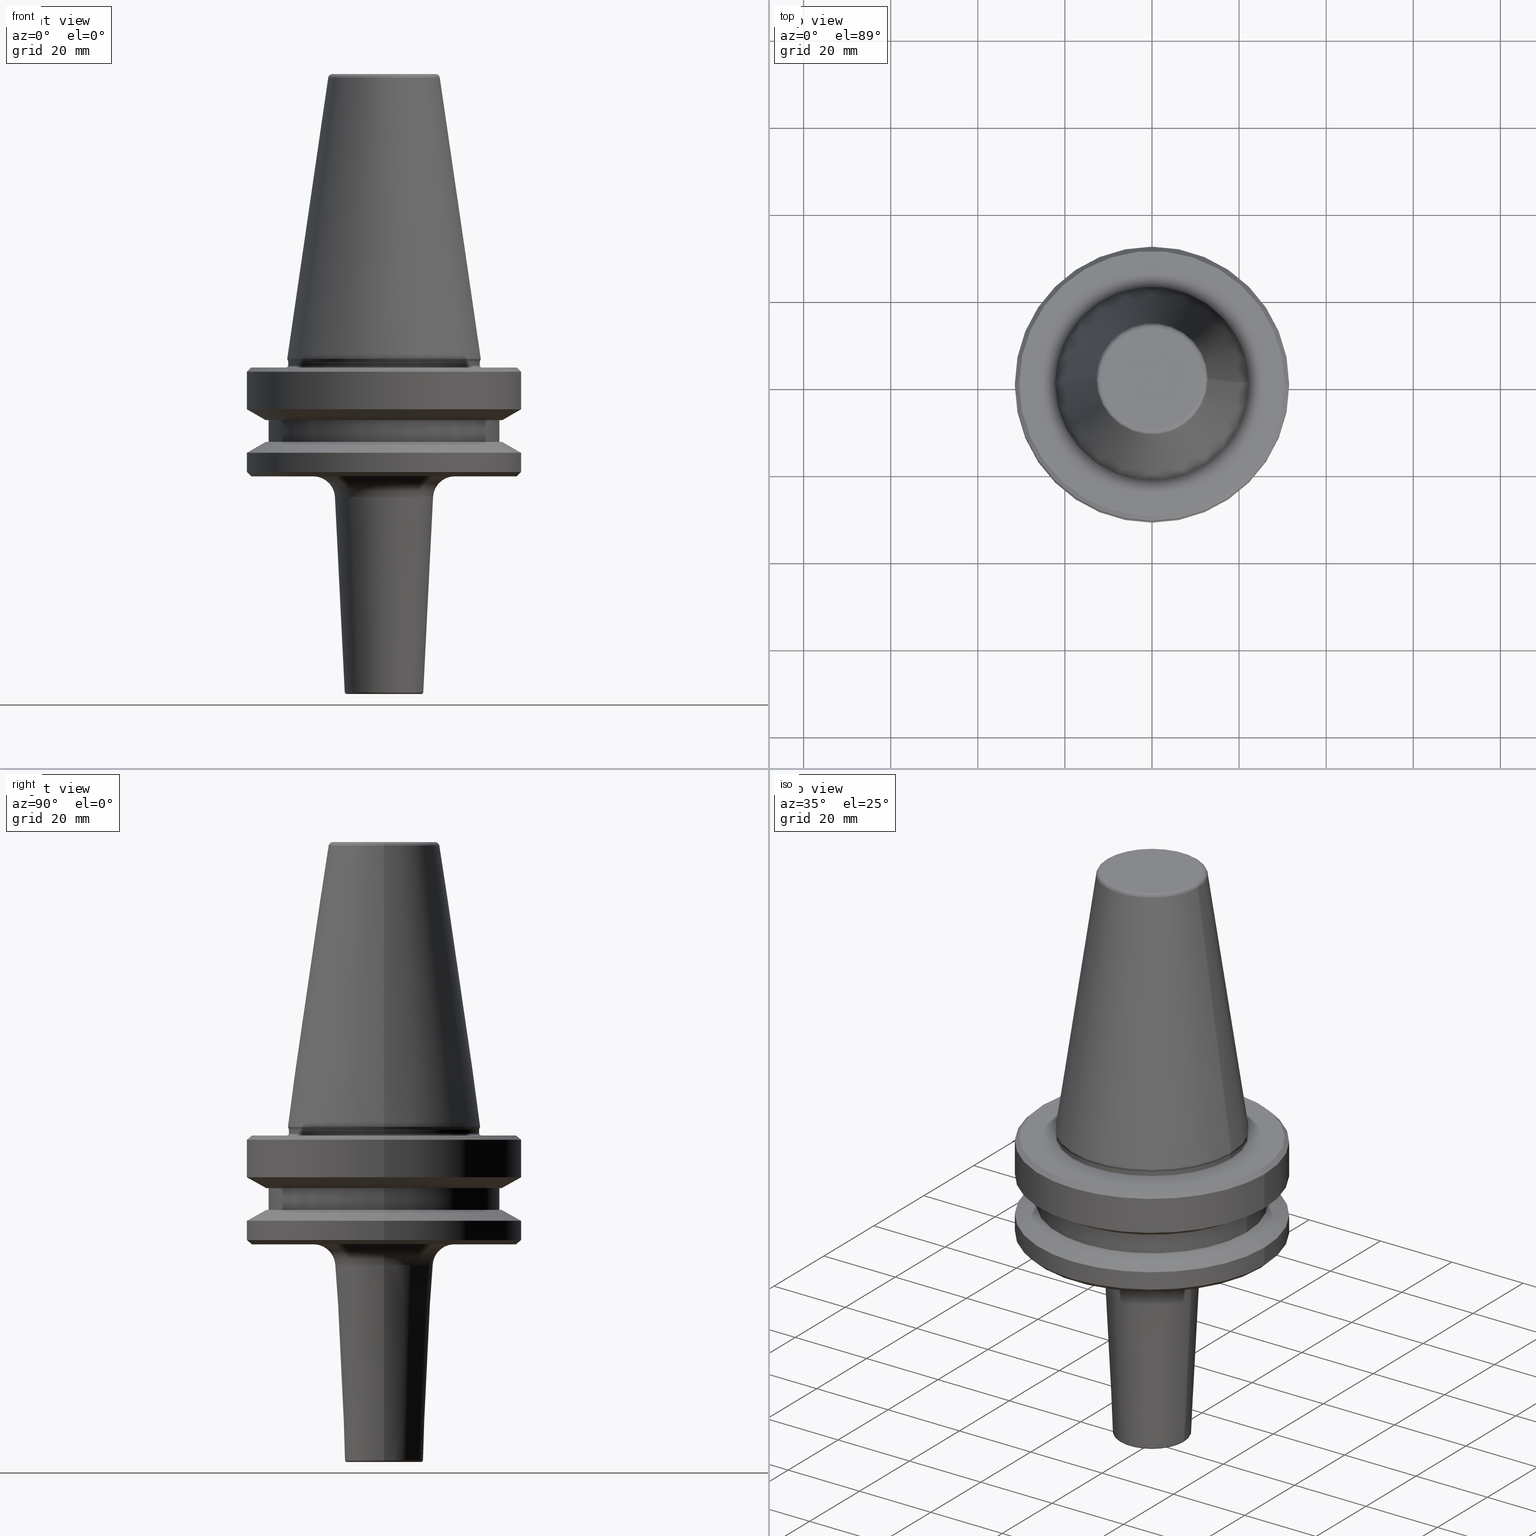
[diagram: canonical four-view strip — front | top / right | iso, engineering-drawing reading convention]
A machine part, canonical four-view strip (front | top / right | iso — engineering-drawing reading convention). The complete STEP part file that produces these views, byte-faithful:
ISO-10303-21;
HEADER;
FILE_DESCRIPTION (( 'STEP AP203' ),
    '1' );
FILE_NAME ('BT40 MCA10 050 AD+B-2.5G 25000 SL.STEP',
    '2019-05-24T09:59:22',
    ( '' ),
    ( '' ),
    'SwSTEP 2.0',
    'SolidWorks 2014',
    '' );
FILE_SCHEMA (( 'CONFIG_CONTROL_DESIGN' ));
ENDSEC;

DATA;
#1 = AXIS2_PLACEMENT_3D ( 'NONE', #332, #1044, #74 ) ;
#2 = ORIENTED_EDGE ( 'NONE', *, *, #148, .T. ) ;
#3 = CARTESIAN_POINT ( 'NONE',  ( 0.0000000000000000000, 0.0000000000000000000, -67.40000000000034700 ) ) ;
#4 = APPROVAL_PERSON_ORGANIZATION ( #240, #943, #853 ) ;
#5 = ORIENTED_EDGE ( 'NONE', *, *, #823, .F. ) ;
#6 = VECTOR ( 'NONE', #256, 1000.000000000000000 ) ;
#7 = EDGE_LOOP ( 'NONE', ( #498, #339, #657, #54 ) ) ;
#8 = DIRECTION ( 'NONE',  ( 1.000000000000000000, 0.0000000000000000000, 0.0000000000000000000 ) ) ;
#9 = DIRECTION ( 'NONE',  ( -0.0000000000000000000, -0.0000000000000000000, 1.000000000000000000 ) ) ;
#10 = DIRECTION ( 'NONE',  ( 0.0000000000000000000, -1.000000000000000000, 0.0000000000000000000 ) ) ;
#11 = ORIENTED_EDGE ( 'NONE', *, *, #1039, .F. ) ;
#12 = EDGE_LOOP ( 'NONE', ( #60, #381 ) ) ;
#13 = AXIS2_PLACEMENT_3D ( 'NONE', #949, #870, #107 ) ;
#14 = CARTESIAN_POINT ( 'NONE',  ( 0.0000000000000000000, 0.0000000000000000000, -92.40000000000806300 ) ) ;
#15 = AXIS2_PLACEMENT_3D ( 'NONE', #615, #980, #86 ) ;
#16 = DIRECTION ( 'NONE',  ( -0.0000000000000000000, -0.0000000000000000000, 1.000000000000000000 ) ) ;
#17 = PLANE ( 'NONE',  #653 ) ;
#18 = DIRECTION ( 'NONE',  ( 1.000000000000000000, 0.0000000000000000000, 0.0000000000000000000 ) ) ;
#19 = LINE ( 'NONE', #525, #909 ) ;
#20 = FACE_OUTER_BOUND ( 'NONE', #731, .T. ) ;
#21 = CARTESIAN_POINT ( 'NONE',  ( -22.22499999999993700, 2.721777511104985000E-015, -65.40000000000057400 ) ) ;
#22 = CARTESIAN_POINT ( 'NONE',  ( 0.0000000000000000000, 0.0000000000000000000, -92.40000000000806300 ) ) ;
#23 = ORIENTED_EDGE ( 'NONE', *, *, #923, .T. ) ;
#24 = CARTESIAN_POINT ( 'NONE',  ( 31.50000000000008500, 0.0000000000000000000, 6.357346922996331500 ) ) ;
#25 = FACE_OUTER_BOUND ( 'NONE', #479, .T. ) ;
#26 = EDGE_LOOP ( 'NONE', ( #688, #795, #150, #178 ) ) ;
#27 = DIRECTION ( 'NONE',  ( 1.000000000000000000, 0.0000000000000000000, 0.0000000000000000000 ) ) ;
#28 = DIRECTION ( 'NONE',  ( 0.0000000000000000000, -1.000000000000000000, 0.0000000000000000000 ) ) ;
#29 = DIRECTION ( 'NONE',  ( 0.0000000000000000000, -0.0000000000000000000, 1.000000000000000000 ) ) ;
#30 = CARTESIAN_POINT ( 'NONE',  ( -11.82266927716813000, 1.447859408766170200E-015, -1.000000000000334000 ) ) ;
#31 = DIRECTION ( 'NONE',  ( -0.0000000000000000000, -0.0000000000000000000, 1.000000000000000000 ) ) ;
#32 = CARTESIAN_POINT ( 'NONE',  ( 0.0000000000000000000, 0.0000000000000000000, -0.8556918111122247000 ) ) ;
#33 = CARTESIAN_POINT ( 'NONE',  ( 0.0000000000000000000, 0.0000000000000000000, -1.000000000000334000 ) ) ;
#34 = CARTESIAN_POINT ( 'NONE',  ( -27.16962701892256100, 0.0000000000000000000, -84.50000000000068200 ) ) ;
#35 = EDGE_CURVE ( 'NONE', #624, #312, #563, .T. ) ;
#36 = CARTESIAN_POINT ( 'NONE',  ( -22.49999999999996400, 2.755455298081540400E-015, -66.90000000000040400 ) ) ;
#37 = AXIS2_PLACEMENT_3D ( 'NONE', #30, #186, #989 ) ;
#38 = ORIENTED_EDGE ( 'NONE', *, *, #47, .T. ) ;
#39 = CONICAL_SURFACE ( 'NONE', #927, 12.81220206925736900, 0.1448138077623198300 ) ;
#40 = AXIS2_PLACEMENT_3D ( 'NONE', #225, #544, #957 ) ;
#41 = DIRECTION ( 'NONE',  ( -0.8660254037844332700, 0.0000000000000000000, -0.5000000000000093300 ) ) ;
#42 = APPROVAL_STATUS ( 'not_yet_approved' ) ;
#43 = ADVANCED_FACE ( 'NONE', ( #766 ), #329, .T. ) ;
#44 = ORIENTED_EDGE ( 'NONE', *, *, #938, .F. ) ;
#45 = ORIENTED_EDGE ( 'NONE', *, *, #148, .F. ) ;
#46 = CARTESIAN_POINT ( 'NONE',  ( -22.49999999999996400, 2.755455298081540400E-015, -67.40000000000034700 ) ) ;
#47 = EDGE_CURVE ( 'NONE', #916, #468, #742, .T. ) ;
#48 = CARTESIAN_POINT ( 'NONE',  ( 0.0000000000000000000, 0.0000000000000000000, 6.357346922996331500 ) ) ;
#49 = EDGE_CURVE ( 'NONE', #471, #659, #140, .T. ) ;
#50 = FACE_OUTER_BOUND ( 'NONE', #206, .T. ) ;
#51 = CYLINDRICAL_SURFACE ( 'NONE', #440, 31.50000000000008500 ) ;
#52 = DIRECTION ( 'NONE',  ( 0.0000000000000000000, -1.000000000000000000, 0.0000000000000000000 ) ) ;
#53 = ORIENTED_EDGE ( 'NONE', *, *, #840, .F. ) ;
#54 = ORIENTED_EDGE ( 'NONE', *, *, #109, .T. ) ;
#55 = ADVANCED_FACE ( 'NONE', ( #117 ), #83, .T. ) ;
#56 = CC_DESIGN_DATE_AND_TIME_ASSIGNMENT ( #1009, #713, ( #885 ) ) ;
#57 = VECTOR ( 'NONE', #108, 1000.000000000000000 ) ;
#58 = ORIENTED_EDGE ( 'NONE', *, *, #923, .F. ) ;
#59 = CARTESIAN_POINT ( 'NONE',  ( 12.81220206925736900, 1.569042225414513200E-015, -0.8556918111122247000 ) ) ;
#60 = ORIENTED_EDGE ( 'NONE', *, *, #872, .T. ) ;
#61 = AXIS2_PLACEMENT_3D ( 'NONE', #370, #767, #415 ) ;
#62 = CARTESIAN_POINT ( 'NONE',  ( 0.0000000000000000000, 0.0000000000000000000, -65.40000000000057400 ) ) ;
#63 = DIRECTION ( 'NONE',  ( 0.1443081888881795900, 1.767265616126607700E-017, -0.9895327920891826600 ) ) ;
#64 = ORIENTED_EDGE ( 'NONE', *, *, #612, .T. ) ;
#65 = ORIENTED_EDGE ( 'NONE', *, *, #878, .T. ) ;
#66 = CARTESIAN_POINT ( 'NONE',  ( 0.0000000000000000000, 0.0000000000000000000, -65.40000000000057400 ) ) ;
#67 = ORIENTED_EDGE ( 'NONE', *, *, #35, .T. ) ;
#68 = EDGE_LOOP ( 'NONE', ( #247, #792, #118, #733 ) ) ;
#69 = ADVANCED_FACE ( 'NONE', ( #968 ), #697, .T. ) ;
#70 = EDGE_CURVE ( 'NONE', #308, #687, #914, .T. ) ;
#71 = ADVANCED_FACE ( 'NONE', ( #724, #303 ), #699, .T. ) ;
#72 = VERTEX_POINT ( 'NONE', #143 ) ;
#73 = EDGE_CURVE ( 'NONE', #468, #916, #539, .T. ) ;
#74 = DIRECTION ( 'NONE',  ( 1.000000000000000000, 0.0000000000000000000, 0.0000000000000000000 ) ) ;
#75 = AXIS2_PLACEMENT_3D ( 'NONE', #14, #208, #462 ) ;
#76 = AXIS2_PLACEMENT_3D ( 'NONE', #158, #524, #307 ) ;
#77 = TOROIDAL_SURFACE ( 'NONE', #1042, 8.524375390137768300, 0.4999999999996984100 ) ;
#78 = CARTESIAN_POINT ( 'NONE',  ( -22.00000000000002100, 2.694222958124179600E-015, 6.357346922996331500 ) ) ;
#79 = DIRECTION ( 'NONE',  ( -0.0000000000000000000, -0.0000000000000000000, 1.000000000000000000 ) ) ;
#80 = FACE_OUTER_BOUND ( 'NONE', #412, .T. ) ;
#81 = CALENDAR_DATE ( 2019, 24, 5 ) ;
#82 = ORIENTED_EDGE ( 'NONE', *, *, #116, .T. ) ;
#83 = CONICAL_SURFACE ( 'NONE', #513, 30.49999999999997200, 0.7853981633974482800 ) ;
#84 = CARTESIAN_POINT ( 'NONE',  ( -26.50000000000019200, 3.245314017740509400E-015, -84.50000000000068200 ) ) ;
#85 = VECTOR ( 'NONE', #671, 1000.000000000000000 ) ;
#86 = DIRECTION ( 'NONE',  ( 1.000000000000000000, 0.0000000000000000000, 0.0000000000000000000 ) ) ;
#87 = ADVANCED_FACE ( 'NONE', ( #482, #511 ), #239, .F. ) ;
#88 = CARTESIAN_POINT ( 'NONE',  ( 0.0000000000000000000, 0.0000000000000000000, -97.40000000000804900 ) ) ;
#89 = CARTESIAN_POINT ( 'NONE',  ( 9.023751559576391300, 0.0000000000000000000, -141.9249688084802900 ) ) ;
#90 = ORIENTED_EDGE ( 'NONE', *, *, #810, .T. ) ;
#91 = EDGE_CURVE ( 'NONE', #1037, #170, #304, .T. ) ;
#92 = ADVANCED_FACE ( 'NONE', ( #313 ), #915, .T. ) ;
#93 = DIRECTION ( 'NONE',  ( -0.0000000000000000000, -0.0000000000000000000, 1.000000000000000000 ) ) ;
#94 = VECTOR ( 'NONE', #367, 1000.000000000000000 ) ;
#95 = EDGE_CURVE ( 'NONE', #512, #312, #275, .T. ) ;
#96 = DIRECTION ( 'NONE',  ( -0.0000000000000000000, -0.0000000000000000000, 1.000000000000000000 ) ) ;
#97 = ORIENTED_EDGE ( 'NONE', *, *, #529, .T. ) ;
#98 = DIRECTION ( 'NONE',  ( 1.000000000000000000, 0.0000000000000000000, 0.0000000000000000000 ) ) ;
#99 = CARTESIAN_POINT ( 'NONE',  ( 0.0000000000000000000, 0.0000000000000000000, -84.50000000000068200 ) ) ;
#100 = AXIS2_PLACEMENT_3D ( 'NONE', #99, #249, #8 ) ;
#101 = ORIENTED_EDGE ( 'NONE', *, *, #1039, .T. ) ;
#102 = DIRECTION ( 'NONE',  ( -0.0000000000000000000, -0.0000000000000000000, 1.000000000000000000 ) ) ;
#103 = ORIENTED_EDGE ( 'NONE', *, *, #782, .F. ) ;
#104 = ORIENTED_EDGE ( 'NONE', *, *, #194, .F. ) ;
#105 = AXIS2_PLACEMENT_3D ( 'NONE', #454, #592, #896 ) ;
#106 = ORIENTED_EDGE ( 'NONE', *, *, #122, .F. ) ;
#107 = DIRECTION ( 'NONE',  ( 1.000000000000000000, 0.0000000000000000000, 0.0000000000000000000 ) ) ;
#108 = DIRECTION ( 'NONE',  ( -0.0000000000000000000, -0.0000000000000000000, 1.000000000000000000 ) ) ;
#109 = EDGE_CURVE ( 'NONE', #327, #195, #700, .T. ) ;
#110 = CARTESIAN_POINT ( 'NONE',  ( 27.16962701892322600, 0.0000000000000000000, -79.50000000000012800 ) ) ;
#111 = VECTOR ( 'NONE', #63, 1000.000000000000000 ) ;
#112 = EDGE_CURVE ( 'NONE', #797, #725, #888, .T. ) ;
#113 = CIRCLE ( 'NONE', #235, 27.16962701892322600 ) ;
#114 = DATE_AND_TIME ( #326, #537 ) ;
#115 = CIRCLE ( 'NONE', #962, 4.999999999999990200 ) ;
#116 = EDGE_CURVE ( 'NONE', #659, #471, #483, .T. ) ;
#117 = FACE_OUTER_BOUND ( 'NONE', #1049, .T. ) ;
#118 = ORIENTED_EDGE ( 'NONE', *, *, #548, .F. ) ;
#119 = DIRECTION ( 'NONE',  ( -0.0000000000000000000, -0.0000000000000000000, 1.000000000000000000 ) ) ;
#120 = PRODUCT_DEFINITION_FORMATION_WITH_SPECIFIED_SOURCE ( 'ANY', '', #917, .NOT_KNOWN. ) ;
#121 = CARTESIAN_POINT ( 'NONE',  ( 0.0000000000000000000, 0.0000000000000000000, -141.9000000000083600 ) ) ;
#122 = EDGE_CURVE ( 'NONE', #470, #327, #673, .T. ) ;
#123 = EDGE_CURVE ( 'NONE', #470, #725, #254, .T. ) ;
#124 = DIRECTION ( 'NONE',  ( -0.0000000000000000000, -0.0000000000000000000, 1.000000000000000000 ) ) ;
#125 = AXIS2_PLACEMENT_3D ( 'NONE', #1005, #280, #27 ) ;
#126 = CIRCLE ( 'NONE', #407, 0.4999999999999449300 ) ;
#127 = CARTESIAN_POINT ( 'NONE',  ( -26.50000000000019200, 3.245314017740509400E-015, 6.357346922996331500 ) ) ;
#128 = EDGE_LOOP ( 'NONE', ( #955, #97, #196, #705 ) ) ;
#129 = CONICAL_SURFACE ( 'NONE', #1014, 11.26248440423597500, 0.04995839572194268200 ) ;
#130 = ORIENTED_EDGE ( 'NONE', *, *, #840, .T. ) ;
#131 = ORIENTED_EDGE ( 'NONE', *, *, #765, .F. ) ;
#132 = ORIENTED_EDGE ( 'NONE', *, *, #829, .T. ) ;
#133 = CARTESIAN_POINT ( 'NONE',  ( 31.50000000000008500, 0.0000000000000000000, -68.40000000000046000 ) ) ;
#134 = CIRCLE ( 'NONE', #167, 0.4000000000001502400 ) ;
#135 = TOROIDAL_SURFACE ( 'NONE', #183, 16.25624609862519800, 4.999999999999994700 ) ;
#136 = PERSON_AND_ORGANIZATION ( #274, #656 ) ;
#137 = AXIS2_PLACEMENT_3D ( 'NONE', #596, #830, #245 ) ;
#138 = LINE ( 'NONE', #437, #538 ) ;
#139 = AXIS2_PLACEMENT_3D ( 'NONE', #933, #783, #144 ) ;
#140 = CIRCLE ( 'NONE', #177, 16.25624609862519400 ) ;
#141 = DIRECTION ( 'NONE',  ( -0.0000000000000000000, -0.0000000000000000000, 1.000000000000000000 ) ) ;
#142 = DIRECTION ( 'NONE',  ( 1.000000000000000000, 0.0000000000000000000, 0.0000000000000000000 ) ) ;
#143 = CARTESIAN_POINT ( 'NONE',  ( -11.82266927716813000, 1.508450817090336800E-015, -4.440892098500626200E-013 ) ) ;
#144 = DIRECTION ( 'NONE',  ( 1.000000000000000000, 0.0000000000000000000, 0.0000000000000000000 ) ) ;
#145 = ORIENTED_EDGE ( 'NONE', *, *, #109, .F. ) ;
#146 = ADVANCED_FACE ( 'NONE', ( #434 ), #832, .T. ) ;
#147 = CARTESIAN_POINT ( 'NONE',  ( -12.81220206925736900, 0.0000000000000000000, -0.8556918111122247000 ) ) ;
#148 = EDGE_CURVE ( 'NONE', #468, #751, #1053, .T. ) ;
#149 = CIRCLE ( 'NONE', #200, 12.81220206925736900 ) ;
#150 = ORIENTED_EDGE ( 'NONE', *, *, #112, .T. ) ;
#151 = CIRCLE ( 'NONE', #566, 22.49999999999996400 ) ;
#152 = CARTESIAN_POINT ( 'NONE',  ( 0.0000000000000000000, 0.0000000000000000000, -68.40000000000046000 ) ) ;
#153 = CARTESIAN_POINT ( 'NONE',  ( 0.0000000000000000000, 0.0000000000000000000, 6.357346922996331500 ) ) ;
#154 = APPROVAL_STATUS ( 'not_yet_approved' ) ;
#155 = AXIS2_PLACEMENT_3D ( 'NONE', #427, #942, #932 ) ;
#156 = ADVANCED_FACE ( 'NONE', ( #649 ), #209, .T. ) ;
#157 = CARTESIAN_POINT ( 'NONE',  ( 30.49999999999997200, 3.796405077356798300E-015, -67.40000000000034700 ) ) ;
#158 = CARTESIAN_POINT ( 'NONE',  ( 0.0000000000000000000, 0.0000000000000000000, -76.99985799368391800 ) ) ;
#159 = FACE_OUTER_BOUND ( 'NONE', #567, .T. ) ;
#160 = LOCAL_TIME ( 15, 29, 22.00000000000000000, #377 ) ;
#161 = CIRCLE ( 'NONE', #690, 31.50000000000008500 ) ;
#162 = ORIENTED_EDGE ( 'NONE', *, *, #685, .T. ) ;
#163 = ADVANCED_FACE ( 'NONE', ( #25 ), #393, .T. ) ;
#164 = EDGE_CURVE ( 'NONE', #1035, #512, #233, .T. ) ;
#165 = ORIENTED_EDGE ( 'NONE', *, *, #823, .T. ) ;
#166 = DIRECTION ( 'NONE',  ( -0.0000000000000000000, -0.0000000000000000000, 1.000000000000000000 ) ) ;
#167 = AXIS2_PLACEMENT_3D ( 'NONE', #600, #28, #430 ) ;
#168 = DIRECTION ( 'NONE',  ( 1.224646799147353200E-016, 1.000000000000000000, 0.0000000000000000000 ) ) ;
#169 = CARTESIAN_POINT ( 'NONE',  ( 0.0000000000000000000, 0.0000000000000000000, -141.9000000000083600 ) ) ;
#170 = VERTEX_POINT ( 'NONE', #975 ) ;
#171 =( NAMED_UNIT ( * ) SI_UNIT ( $, .STERADIAN. ) SOLID_ANGLE_UNIT ( ) );
#172 = APPROVAL ( #154, 'UNSPECIFIED' ) ;
#173 = DIRECTION ( 'NONE',  ( -0.0000000000000000000, -0.0000000000000000000, 1.000000000000000000 ) ) ;
#174 = EDGE_CURVE ( 'NONE', #512, #954, #609, .T. ) ;
#175 = DIRECTION ( 'NONE',  ( -0.0000000000000000000, -0.0000000000000000000, 1.000000000000000000 ) ) ;
#176 = ORIENTED_EDGE ( 'NONE', *, *, #281, .F. ) ;
#177 = AXIS2_PLACEMENT_3D ( 'NONE', #22, #794, #644 ) ;
#178 = ORIENTED_EDGE ( 'NONE', *, *, #123, .F. ) ;
#179 = EDGE_CURVE ( 'NONE', #531, #899, #1027, .T. ) ;
#180 = AXIS2_PLACEMENT_3D ( 'NONE', #611, #285, #431 ) ;
#181 = DIRECTION ( 'NONE',  ( -0.0000000000000000000, -0.0000000000000000000, 1.000000000000000000 ) ) ;
#182 = CIRCLE ( 'NONE', #37, 0.9999999999999696900 ) ;
#183 = AXIS2_PLACEMENT_3D ( 'NONE', #88, #718, #845 ) ;
#184 = CARTESIAN_POINT ( 'NONE',  ( 31.50000000000008500, 0.0000000000000000000, -87.00014200631733300 ) ) ;
#185 = DIRECTION ( 'NONE',  ( 0.0000000000000000000, 0.0000000000000000000, -1.000000000000000000 ) ) ;
#186 = DIRECTION ( 'NONE',  ( 1.224646799147353200E-016, 1.000000000000000000, 0.0000000000000000000 ) ) ;
#187 = CYLINDRICAL_SURFACE ( 'NONE', #963, 31.50000000000008500 ) ;
#188 = CALENDAR_DATE ( 2019, 24, 5 ) ;
#189 = EDGE_CURVE ( 'NONE', #725, #195, #413, .T. ) ;
#190 = CARTESIAN_POINT ( 'NONE',  ( 0.0000000000000000000, 0.0000000000000000000, -65.95190515433003500 ) ) ;
#191 = TOROIDAL_SURFACE ( 'NONE', #587, 22.40000000000019800, 0.4000000000001546800 ) ;
#192 = DIRECTION ( 'NONE',  ( -0.0000000000000000000, -0.0000000000000000000, 1.000000000000000000 ) ) ;
#193 = EDGE_LOOP ( 'NONE', ( #714, #848, #552, #621 ) ) ;
#194 = EDGE_CURVE ( 'NONE', #708, #72, #182, .T. ) ;
#195 = VERTEX_POINT ( 'NONE', #184 ) ;
#196 = ORIENTED_EDGE ( 'NONE', *, *, #890, .F. ) ;
#197 = ORIENTED_EDGE ( 'NONE', *, *, #91, .F. ) ;
#198 = DESIGN_CONTEXT ( 'detailed design', #684, 'design' ) ;
#199 = DIRECTION ( 'NONE',  ( -0.0000000000000000000, -0.0000000000000000000, 1.000000000000000000 ) ) ;
#200 = AXIS2_PLACEMENT_3D ( 'NONE', #466, #1029, #319 ) ;
#201 = DIRECTION ( 'NONE',  ( 1.000000000000000000, 0.0000000000000000000, 0.0000000000000000000 ) ) ;
#202 = DIRECTION ( 'NONE',  ( 1.000000000000000000, 0.0000000000000000000, 0.0000000000000000000 ) ) ;
#203 = CARTESIAN_POINT ( 'NONE',  ( -31.50000000000008500, 3.857637417314172900E-015, 6.357346922996331500 ) ) ;
#204 = CARTESIAN_POINT ( 'NONE',  ( -26.50000000000019200, 3.245314017740509400E-015, -79.50000000000012800 ) ) ;
#205 = TOROIDAL_SURFACE ( 'NONE', #978, 22.40000000000019800, 0.4000000000001546800 ) ;
#206 = EDGE_LOOP ( 'NONE', ( #425, #508, #244, #348 ) ) ;
#207 = CARTESIAN_POINT ( 'NONE',  ( 0.0000000000000000000, 0.0000000000000000000, -97.15031191528858300 ) ) ;
#208 = DIRECTION ( 'NONE',  ( -0.0000000000000000000, -0.0000000000000000000, 1.000000000000000000 ) ) ;
#209 = CYLINDRICAL_SURFACE ( 'NONE', #13, 31.50000000000008500 ) ;
#210 = DIRECTION ( 'NONE',  ( 1.000000000000000000, 0.0000000000000000000, 0.0000000000000000000 ) ) ;
#211 = CARTESIAN_POINT ( 'NONE',  ( 26.50000000000019200, 0.0000000000000000000, -84.50000000000068200 ) ) ;
#212 = CARTESIAN_POINT ( 'NONE',  ( 0.0000000000000000000, 0.0000000000000000000, -66.90000000000040400 ) ) ;
#213 = CARTESIAN_POINT ( 'NONE',  ( 0.0000000000000000000, 0.0000000000000000000, -142.4000000000080500 ) ) ;
#214 = AXIS2_PLACEMENT_3D ( 'NONE', #565, #732, #772 ) ;
#215 = AXIS2_PLACEMENT_3D ( 'NONE', #838, #813, #514 ) ;
#216 = DATE_AND_TIME ( #417, #635 ) ;
#217 = DIRECTION ( 'NONE',  ( -0.7071067811865474600, 0.0000000000000000000, -0.7071067811865475700 ) ) ;
#218 = CIRCLE ( 'NONE', #262, 11.26248440423597500 ) ;
#219 = ORIENTED_EDGE ( 'NONE', *, *, #1041, .F. ) ;
#220 = AXIS2_PLACEMENT_3D ( 'NONE', #395, #1040, #741 ) ;
#221 = ORIENTED_EDGE ( 'NONE', *, *, #726, .T. ) ;
#222 = VERTEX_POINT ( 'NONE', #905 ) ;
#223 = CARTESIAN_POINT ( 'NONE',  ( 0.0000000000000000000, 0.0000000000000000000, -79.50000000000012800 ) ) ;
#224 = EDGE_CURVE ( 'NONE', #1050, #448, #579, .T. ) ;
#225 = CARTESIAN_POINT ( 'NONE',  ( 0.0000000000000000000, 0.0000000000000000000, -1.000000000000334000 ) ) ;
#226 = DIRECTION ( 'NONE',  ( 1.000000000000000000, 0.0000000000000000000, 0.0000000000000000000 ) ) ;
#227 = DIRECTION ( 'NONE',  ( 0.0000000000000000000, 0.0000000000000000000, -1.000000000000000000 ) ) ;
#228 = CIRCLE ( 'NONE', #710, 30.49999999999997200 ) ;
#229 = ORIENTED_EDGE ( 'NONE', *, *, #294, .F. ) ;
#230 = CC_DESIGN_APPROVAL ( #172, ( #120 ) ) ;
#231 = ORIENTED_EDGE ( 'NONE', *, *, #995, .T. ) ;
#232 = DIRECTION ( 'NONE',  ( 1.000000000000000000, 0.0000000000000000000, 0.0000000000000000000 ) ) ;
#233 = LINE ( 'NONE', #744, #808 ) ;
#234 = AXIS2_PLACEMENT_3D ( 'NONE', #451, #475, #1002 ) ;
#235 = AXIS2_PLACEMENT_3D ( 'NONE', #967, #93, #458 ) ;
#236 = VERTEX_POINT ( 'NONE', #380 ) ;
#237 = CARTESIAN_POINT ( 'NONE',  ( 31.50000000000008500, 0.0000000000000000000, -91.40000000000037500 ) ) ;
#238 = DIRECTION ( 'NONE',  ( 0.7071067811865487900, 0.0000000000000000000, 0.7071067811865463500 ) ) ;
#239 = PLANE ( 'NONE',  #998 ) ;
#240 = PERSON_AND_ORGANIZATION ( #274, #656 ) ;
#241 = ORIENTED_EDGE ( 'NONE', *, *, #663, .T. ) ;
#242 = APPLICATION_PROTOCOL_DEFINITION ( 'international standard', 'config_control_design', 1994, #584 ) ;
#243 = LINE ( 'NONE', #572, #6 ) ;
#244 = ORIENTED_EDGE ( 'NONE', *, *, #988, .F. ) ;
#245 = DIRECTION ( 'NONE',  ( 1.000000000000000000, 0.0000000000000000000, 0.0000000000000000000 ) ) ;
#246 = ORIENTED_EDGE ( 'NONE', *, *, #224, .F. ) ;
#247 = ORIENTED_EDGE ( 'NONE', *, *, #988, .T. ) ;
#248 = PLANE ( 'NONE',  #850 ) ;
#249 = DIRECTION ( 'NONE',  ( 0.0000000000000000000, -0.0000000000000000000, 1.000000000000000000 ) ) ;
#250 = AXIS2_PLACEMENT_3D ( 'NONE', #153, #740, #729 ) ;
#251 = AXIS2_PLACEMENT_3D ( 'NONE', #396, #935, #1012 ) ;
#252 = FACE_OUTER_BOUND ( 'NONE', #26, .T. ) ;
#253 = CIRCLE ( 'NONE', #614, 11.26248440423597500 ) ;
#254 = CIRCLE ( 'NONE', #137, 31.50000000000008500 ) ;
#255 = DIRECTION ( 'NONE',  ( 1.000000000000000000, 0.0000000000000000000, 0.0000000000000000000 ) ) ;
#256 = DIRECTION ( 'NONE',  ( 0.3420201433262311000, 0.0000000000000000000, 0.9396926207857037000 ) ) ;
#257 = DIRECTION ( 'NONE',  ( 1.000000000000000000, 0.0000000000000000000, 0.0000000000000000000 ) ) ;
#258 = ORIENTED_EDGE ( 'NONE', *, *, #194, .T. ) ;
#259 = EDGE_CURVE ( 'NONE', #624, #344, #630, .T. ) ;
#260 = FACE_OUTER_BOUND ( 'NONE', #292, .T. ) ;
#261 = DIRECTION ( 'NONE',  ( 1.000000000000000000, 0.0000000000000000000, 0.0000000000000000000 ) ) ;
#262 = AXIS2_PLACEMENT_3D ( 'NONE', #990, #385, #679 ) ;
#263 = ORIENTED_EDGE ( 'NONE', *, *, #1052, .F. ) ;
#264 = ORIENTED_EDGE ( 'NONE', *, *, #843, .F. ) ;
#265 = CARTESIAN_POINT ( 'NONE',  ( 0.0000000000000000000, 1.800519164149672700E-013, -92.40000000000804900 ) ) ;
#266 = EDGE_CURVE ( 'NONE', #899, #340, #368, .T. ) ;
#267 = CARTESIAN_POINT ( 'NONE',  ( 11.26248440423597500, 0.0000000000000000000, -97.15031191528858300 ) ) ;
#268 = FACE_OUTER_BOUND ( 'NONE', #873, .T. ) ;
#269 = TOROIDAL_SURFACE ( 'NONE', #342, 22.49999999999996400, 0.4999999999999449300 ) ;
#270 = EDGE_CURVE ( 'NONE', #687, #308, #151, .T. ) ;
#271 = PLANE ( 'NONE',  #321 ) ;
#272 = EDGE_LOOP ( 'NONE', ( #820, #130, #264, #553 ) ) ;
#273 = ORIENTED_EDGE ( 'NONE', *, *, #123, .T. ) ;
#274 = PERSON ( 'UNSPECIFIED', 'UNSPECIFIED', 'UNSPECIFIED', ('UNSPECIFIED'), ('UNSPECIFIED'), ('UNSPECIFIED') ) ;
#275 = LINE ( 'NONE', #318, #57 ) ;
#276 = ORIENTED_EDGE ( 'NONE', *, *, #1028, .F. ) ;
#277 = CARTESIAN_POINT ( 'NONE',  ( 30.49999999999241900, 0.0000000000000000000, -92.40000000000803500 ) ) ;
#278 = CC_DESIGN_PERSON_AND_ORGANIZATION_ASSIGNMENT ( #353, #449, ( #120 ) ) ;
#279 = CARTESIAN_POINT ( 'NONE',  ( 0.0000000000000000000, 0.0000000000000000000, -68.40000000000046000 ) ) ;
#280 = DIRECTION ( 'NONE',  ( -0.0000000000000000000, -0.0000000000000000000, 1.000000000000000000 ) ) ;
#281 = EDGE_CURVE ( 'NONE', #1037, #806, #778, .T. ) ;
#282 = AXIS2_PLACEMENT_3D ( 'NONE', #33, #777, #232 ) ;
#283 = ADVANCED_FACE ( 'NONE', ( #550 ), #187, .T. ) ;
#284 = AXIS2_PLACEMENT_3D ( 'NONE', #351, #809, #974 ) ;
#285 = DIRECTION ( 'NONE',  ( -0.0000000000000000000, -0.0000000000000000000, 1.000000000000000000 ) ) ;
#286 = DIRECTION ( 'NONE',  ( -0.8660254037844383700, 1.060575238724906500E-016, 0.5000000000000003300 ) ) ;
#287 = DIRECTION ( 'NONE',  ( 1.224646799147353200E-016, 1.000000000000000000, 0.0000000000000000000 ) ) ;
#288 = DIRECTION ( 'NONE',  ( 1.000000000000000000, 0.0000000000000000000, 0.0000000000000000000 ) ) ;
#289 = APPROVAL_ROLE ( '' ) ;
#290 = ORIENTED_EDGE ( 'NONE', *, *, #410, .F. ) ;
#291 = VERTEX_POINT ( 'NONE', #21 ) ;
#292 = EDGE_LOOP ( 'NONE', ( #104, #1024, #924, #103 ) ) ;
#293 = DIRECTION ( 'NONE',  ( 1.000000000000000000, 0.0000000000000000000, 0.0000000000000000000 ) ) ;
#294 = EDGE_CURVE ( 'NONE', #170, #751, #755, .T. ) ;
#295 = ADVANCED_FACE ( 'NONE', ( #941, #343 ), #271, .F. ) ;
#296 = UNCERTAINTY_MEASURE_WITH_UNIT (LENGTH_MEASURE( 1.000000000000000100E-005 ), #520, 'distance_accuracy_value', 'NONE');
#297 = CIRCLE ( 'NONE', #1034, 0.9999999999999696900 ) ;
#298 = AXIS2_PLACEMENT_3D ( 'NONE', #32, #926, #756 ) ;
#299 = VECTOR ( 'NONE', #41, 1000.000000000000000 ) ;
#300 = LOCAL_TIME ( 15, 29, 22.00000000000000000, #506 ) ;
#301 = CIRCLE ( 'NONE', #15, 22.22499999999993700 ) ;
#302 = ORIENTED_EDGE ( 'NONE', *, *, #900, .T. ) ;
#303 = FACE_BOUND ( 'NONE', #591, .T. ) ;
#304 = LINE ( 'NONE', #776, #85 ) ;
#305 = DIRECTION ( 'NONE',  ( 1.000000000000000000, 0.0000000000000000000, 0.0000000000000000000 ) ) ;
#306 = ORIENTED_EDGE ( 'NONE', *, *, #450, .F. ) ;
#307 = DIRECTION ( 'NONE',  ( 1.000000000000000000, 0.0000000000000000000, 0.0000000000000000000 ) ) ;
#308 = VERTEX_POINT ( 'NONE', #631 ) ;
#309 = CARTESIAN_POINT ( 'NONE',  ( 0.0000000000000000000, 0.0000000000000000000, -66.90000000000040400 ) ) ;
#310 = LINE ( 'NONE', #676, #94 ) ;
#311 = ORIENTED_EDGE ( 'NONE', *, *, #799, .F. ) ;
#312 = VERTEX_POINT ( 'NONE', #706 ) ;
#313 = FACE_OUTER_BOUND ( 'NONE', #527, .T. ) ;
#314 = CARTESIAN_POINT ( 'NONE',  ( 0.0000000000000000000, 0.0000000000000000000, -67.40000000000034700 ) ) ;
#315 = DIRECTION ( 'NONE',  ( -1.000000000000000000, 0.0000000000000000000, 0.0000000000000000000 ) ) ;
#316 = ORIENTED_EDGE ( 'NONE', *, *, #814, .T. ) ;
#317 = ORIENTED_EDGE ( 'NONE', *, *, #1020, .F. ) ;
#318 = CARTESIAN_POINT ( 'NONE',  ( -31.50000000000008500, 3.857637417314172900E-015, 6.357346922996331500 ) ) ;
#319 = DIRECTION ( 'NONE',  ( 1.000000000000000000, 0.0000000000000000000, 0.0000000000000000000 ) ) ;
#320 = ORIENTED_EDGE ( 'NONE', *, *, #379, .F. ) ;
#321 = AXIS2_PLACEMENT_3D ( 'NONE', #748, #882, #1025 ) ;
#322 = DIRECTION ( 'NONE',  ( 1.000000000000000000, 0.0000000000000000000, 0.0000000000000000000 ) ) ;
#323 = AXIS2_PLACEMENT_3D ( 'NONE', #190, #9, #322 ) ;
#324 = CIRCLE ( 'NONE', #701, 30.49999999999241900 ) ;
#325 = CIRCLE ( 'NONE', #1001, 27.16962701892256100 ) ;
#326 = CALENDAR_DATE ( 2019, 24, 5 ) ;
#327 = VERTEX_POINT ( 'NONE', #394 ) ;
#328 = FACE_OUTER_BOUND ( 'NONE', #807, .T. ) ;
#329 = CYLINDRICAL_SURFACE ( 'NONE', #220, 22.00000000000002100 ) ;
#330 = ADVANCED_FACE ( 'NONE', ( #785 ), #558, .T. ) ;
#331 = CARTESIAN_POINT ( 'NONE',  ( 0.0000000000000000000, 0.0000000000000000000, -91.40000000000037500 ) ) ;
#332 = CARTESIAN_POINT ( 'NONE',  ( 0.0000000000000000000, 0.0000000000000000000, -84.50000000000068200 ) ) ;
#333 = DIRECTION ( 'NONE',  ( 1.000000000000000000, 0.0000000000000000000, 0.0000000000000000000 ) ) ;
#334 = CC_DESIGN_PERSON_AND_ORGANIZATION_ASSIGNMENT ( #136, #1045, ( #120 ) ) ;
#335 = CARTESIAN_POINT ( 'NONE',  ( 0.0000000000000000000, 0.0000000000000000000, -91.40000000000037500 ) ) ;
#336 = CIRCLE ( 'NONE', #298, 12.81220206925736900 ) ;
#337 = ORIENTED_EDGE ( 'NONE', *, *, #959, .T. ) ;
#338 = CARTESIAN_POINT ( 'NONE',  ( 0.0000000000000000000, 0.0000000000000000000, 6.357346922996331500 ) ) ;
#339 = ORIENTED_EDGE ( 'NONE', *, *, #622, .F. ) ;
#340 = VERTEX_POINT ( 'NONE', #559 ) ;
#341 = CARTESIAN_POINT ( 'NONE',  ( -31.50000000000008500, 3.857637417314172900E-015, -91.40000000000037500 ) ) ;
#342 = AXIS2_PLACEMENT_3D ( 'NONE', #212, #678, #921 ) ;
#343 = FACE_OUTER_BOUND ( 'NONE', #770, .T. ) ;
#344 = VERTEX_POINT ( 'NONE', #157 ) ;
#345 = DIRECTION ( 'NONE',  ( 1.000000000000000000, 0.0000000000000000000, 0.0000000000000000000 ) ) ;
#346 = DIRECTION ( 'NONE',  ( 0.0000000000000000000, -1.000000000000000000, 0.0000000000000000000 ) ) ;
#347 = ORIENTED_EDGE ( 'NONE', *, *, #652, .F. ) ;
#348 = ORIENTED_EDGE ( 'NONE', *, *, #438, .F. ) ;
#349 = DIRECTION ( 'NONE',  ( -0.04993761694389215600, 6.115594274738417000E-018, 0.9987523388778446500 ) ) ;
#350 = CIRCLE ( 'NONE', #773, 31.50000000000008500 ) ;
#351 = CARTESIAN_POINT ( 'NONE',  ( 0.0000000000000000000, 0.0000000000000000000, -84.50000000000068200 ) ) ;
#352 = CONICAL_SURFACE ( 'NONE', #893, 30.49999999999997200, 0.7853981633974482800 ) ;
#353 = PERSON_AND_ORGANIZATION ( #274, #656 ) ;
#354 = FACE_OUTER_BOUND ( 'NONE', #480, .T. ) ;
#355 = VECTOR ( 'NONE', #217, 1000.000000000000000 ) ;
#356 = CARTESIAN_POINT ( 'NONE',  ( 0.0000000000000000000, 0.0000000000000000000, -67.40000000000034700 ) ) ;
#357 = AXIS2_PLACEMENT_3D ( 'NONE', #213, #919, #371 ) ;
#358 = CARTESIAN_POINT ( 'NONE',  ( -30.49999999999997200, 0.0000000000000000000, -67.40000000000034700 ) ) ;
#359 = CARTESIAN_POINT ( 'NONE',  ( 0.0000000000000000000, 0.0000000000000000000, -141.9249688084802900 ) ) ;
#360 = CARTESIAN_POINT ( 'NONE',  ( 0.0000000000000000000, 0.0000000000000000000, -91.40000000000037500 ) ) ;
#361 = DIRECTION ( 'NONE',  ( 1.000000000000000000, 0.0000000000000000000, 0.0000000000000000000 ) ) ;
#362 = CONICAL_SURFACE ( 'NONE', #76, 31.50000000000008500, 1.047197551196597400 ) ;
#363 = CLOSED_SHELL ( 'NONE', ( #330, #760, #92, #163, #457, #784, #146, #682, #569, #666, #503, #689, #69, #283, #908, #613, #590, #87, #555, #373, #1007, #71, #604, #721, #973, #156, #55, #295, #855, #43, #871, #366, #793, #798, #860, #891, #452, #956 ) ) ;
#364 = EDGE_LOOP ( 'NONE', ( #696, #677, #577, #867 ) ) ;
#365 = EDGE_CURVE ( 'NONE', #1037, #308, #981, .T. ) ;
#366 = ADVANCED_FACE ( 'NONE', ( #586 ), #961, .T. ) ;
#367 = DIRECTION ( 'NONE',  ( -0.0000000000000000000, -0.0000000000000000000, 1.000000000000000000 ) ) ;
#368 = LINE ( 'NONE', #267, #976 ) ;
#369 = DIRECTION ( 'NONE',  ( -0.0000000000000000000, -0.0000000000000000000, 1.000000000000000000 ) ) ;
#370 = CARTESIAN_POINT ( 'NONE',  ( 0.0000000000000000000, 0.0000000000000000000, -87.00014200631733300 ) ) ;
#371 = DIRECTION ( 'NONE',  ( 1.000000000000000000, 0.0000000000000000000, 0.0000000000000000000 ) ) ;
#372 = ADVANCED_BREP_SHAPE_REPRESENTATION ( 'BT40 MCA10 050 AD+B-2.5G 25000 SL', ( #819, #768 ), #568 ) ;
#373 = ADVANCED_FACE ( 'NONE', ( #159 ), #1008, .T. ) ;
#374 = AXIS2_PLACEMENT_3D ( 'NONE', #309, #692, #142 ) ;
#375 = DIRECTION ( 'NONE',  ( -0.0000000000000000000, -0.0000000000000000000, 1.000000000000000000 ) ) ;
#376 = CIRCLE ( 'NONE', #1, 26.50000000000019200 ) ;
#377 = COORDINATED_UNIVERSAL_TIME_OFFSET ( 5, 30, .AHEAD. ) ;
#378 = CIRCLE ( 'NONE', #639, 9.023751559576391300 ) ;
#379 = EDGE_CURVE ( 'NONE', #727, #547, #376, .T. ) ;
#380 = CARTESIAN_POINT ( 'NONE',  ( -8.524375390137768300, 1.074512874999942700E-015, -142.4000000000080500 ) ) ;
#381 = ORIENTED_EDGE ( 'NONE', *, *, #782, .T. ) ;
#382 = DIRECTION ( 'NONE',  ( -1.000000000000000000, 1.224646799147353700E-016, 0.0000000000000000000 ) ) ;
#383 = ORIENTED_EDGE ( 'NONE', *, *, #735, .T. ) ;
#384 = ORIENTED_EDGE ( 'NONE', *, *, #259, .T. ) ;
#385 = DIRECTION ( 'NONE',  ( -0.0000000000000000000, -0.0000000000000000000, 1.000000000000000000 ) ) ;
#386 = EDGE_CURVE ( 'NONE', #708, #291, #761, .T. ) ;
#387 = ORIENTED_EDGE ( 'NONE', *, *, #224, .T. ) ;
#388 = DIRECTION ( 'NONE',  ( -1.000000000000000000, 0.0000000000000000000, -0.0000000000000000000 ) ) ;
#389 = SECURITY_CLASSIFICATION ( '', '', #582 ) ;
#390 = ORIENTED_EDGE ( 'NONE', *, *, #938, .T. ) ;
#391 = EDGE_LOOP ( 'NONE', ( #894, #996 ) ) ;
#392 = EDGE_CURVE ( 'NONE', #916, #170, #134, .T. ) ;
#393 = CONICAL_SURFACE ( 'NONE', #406, 12.81220206925736900, 0.1448138077623198300 ) ;
#394 = CARTESIAN_POINT ( 'NONE',  ( -31.50000000000008500, 3.857637417314172900E-015, -87.00014200631733300 ) ) ;
#395 = CARTESIAN_POINT ( 'NONE',  ( 0.0000000000000000000, 0.0000000000000000000, 6.357346922996331500 ) ) ;
#396 = CARTESIAN_POINT ( 'NONE',  ( 0.0000000000000000000, 0.0000000000000000000, -87.00014200631733300 ) ) ;
#397 = CARTESIAN_POINT ( 'NONE',  ( 0.0000000000000000000, 0.0000000000000000000, -66.08871321165987900 ) ) ;
#398 = LOCAL_TIME ( 15, 29, 22.00000000000000000, #619 ) ;
#399 = FACE_OUTER_BOUND ( 'NONE', #595, .T. ) ;
#400 = DIRECTION ( 'NONE',  ( 1.000000000000000000, 0.0000000000000000000, 0.0000000000000000000 ) ) ;
#401 = ORIENTED_EDGE ( 'NONE', *, *, #259, .F. ) ;
#402 = ORIENTED_EDGE ( 'NONE', *, *, #1052, .T. ) ;
#403 = ORIENTED_EDGE ( 'NONE', *, *, #548, .T. ) ;
#404 = ORIENTED_EDGE ( 'NONE', *, *, #438, .T. ) ;
#405 = DIRECTION ( 'NONE',  ( -0.0000000000000000000, -0.0000000000000000000, 1.000000000000000000 ) ) ;
#406 = AXIS2_PLACEMENT_3D ( 'NONE', #703, #675, #633 ) ;
#407 = AXIS2_PLACEMENT_3D ( 'NONE', #36, #287, #435 ) ;
#408 = CARTESIAN_POINT ( 'NONE',  ( -9.023751559576391300, 1.105090846373616300E-015, -141.9249688084802900 ) ) ;
#409 = ORIENTED_EDGE ( 'NONE', *, *, #622, .T. ) ;
#410 = EDGE_CURVE ( 'NONE', #999, #222, #535, .T. ) ;
#411 = FACE_OUTER_BOUND ( 'NONE', #500, .T. ) ;
#412 = EDGE_LOOP ( 'NONE', ( #1013, #132, #246, #263 ) ) ;
#413 = LINE ( 'NONE', #24, #1003 ) ;
#414 = DIRECTION ( 'NONE',  ( -0.0000000000000000000, -0.0000000000000000000, 1.000000000000000000 ) ) ;
#415 = DIRECTION ( 'NONE',  ( 1.000000000000000000, 0.0000000000000000000, 0.0000000000000000000 ) ) ;
#416 = DIRECTION ( 'NONE',  ( 1.000000000000000000, 0.0000000000000000000, 0.0000000000000000000 ) ) ;
#417 = CALENDAR_DATE ( 2019, 24, 5 ) ;
#418 = AXIS2_PLACEMENT_3D ( 'NONE', #314, #102, #920 ) ;
#419 = VECTOR ( 'NONE', #16, 1000.000000000000000 ) ;
#420 = AXIS2_PLACEMENT_3D ( 'NONE', #864, #892, #800 ) ;
#421 = ORIENTED_EDGE ( 'NONE', *, *, #878, .F. ) ;
#422 = ORIENTED_EDGE ( 'NONE', *, *, #281, .T. ) ;
#423 = ORIENTED_EDGE ( 'NONE', *, *, #73, .F. ) ;
#424 = APPLICATION_PROTOCOL_DEFINITION ( 'international standard', 'config_control_design', 1994, #684 ) ;
#425 = ORIENTED_EDGE ( 'NONE', *, *, #863, .T. ) ;
#426 = FACE_OUTER_BOUND ( 'NONE', #897, .T. ) ;
#427 = CARTESIAN_POINT ( 'NONE',  ( 0.0000000000000000000, 0.0000000000000000000, -65.40000000000057400 ) ) ;
#428 = CIRCLE ( 'NONE', #866, 11.82266927716813000 ) ;
#429 = DIRECTION ( 'NONE',  ( 1.224646799147353200E-016, 1.000000000000000000, 0.0000000000000000000 ) ) ;
#430 = DIRECTION ( 'NONE',  ( 0.0000000000000000000, 0.0000000000000000000, -1.000000000000000000 ) ) ;
#431 = DIRECTION ( 'NONE',  ( 1.000000000000000000, 0.0000000000000000000, 0.0000000000000000000 ) ) ;
#432 = CC_DESIGN_PERSON_AND_ORGANIZATION_ASSIGNMENT ( #965, #618, ( #389 ) ) ;
#433 = CARTESIAN_POINT ( 'NONE',  ( 30.49999999999997200, 3.735172737399423600E-015, -67.40000000000034700 ) ) ;
#434 = FACE_OUTER_BOUND ( 'NONE', #445, .T. ) ;
#435 = DIRECTION ( 'NONE',  ( -1.000000000000000000, 1.224646799147354400E-016, 0.0000000000000000000 ) ) ;
#436 = EDGE_CURVE ( 'NONE', #797, #625, #324, .T. ) ;
#437 = CARTESIAN_POINT ( 'NONE',  ( 31.50000000000008500, 3.857637417314172900E-015, -87.00014200631733300 ) ) ;
#438 = EDGE_CURVE ( 'NONE', #554, #954, #934, .T. ) ;
#439 = CARTESIAN_POINT ( 'NONE',  ( -31.50000000000008500, 0.0000000000000000000, -87.00014200631733300 ) ) ;
#440 = AXIS2_PLACEMENT_3D ( 'NONE', #48, #918, #852 ) ;
#441 = PERSON_AND_ORGANIZATION ( #274, #656 ) ;
#442 = ORIENTED_EDGE ( 'NONE', *, *, #765, .T. ) ;
#443 = CARTESIAN_POINT ( 'NONE',  ( 0.0000000000000000000, 0.0000000000000000000, -67.40000000000034700 ) ) ;
#444 = CIRCLE ( 'NONE', #105, 22.00000000000002100 ) ;
#445 = EDGE_LOOP ( 'NONE', ( #422, #241, #229, #197 ) ) ;
#446 = CARTESIAN_POINT ( 'NONE',  ( 0.0000000000000000000, 0.0000000000000000000, 6.357346922996331500 ) ) ;
#447 = ORIENTED_EDGE ( 'NONE', *, *, #651, .F. ) ;
#448 = VERTEX_POINT ( 'NONE', #204 ) ;
#449 = PERSON_AND_ORGANIZATION_ROLE ( 'creator' ) ;
#450 = EDGE_CURVE ( 'NONE', #999, #939, #297, .T. ) ;
#451 = CARTESIAN_POINT ( 'NONE',  ( 0.0000000000000000000, 0.0000000000000000000, -76.99985799368391800 ) ) ;
#452 = ADVANCED_FACE ( 'NONE', ( #720 ), #77, .T. ) ;
#453 = AXIS2_PLACEMENT_3D ( 'NONE', #680, #124, #210 ) ;
#454 = CARTESIAN_POINT ( 'NONE',  ( 0.0000000000000000000, 0.0000000000000000000, -66.90000000000040400 ) ) ;
#455 = VECTOR ( 'NONE', #786, 1000.000000000000000 ) ;
#456 = CIRCLE ( 'NONE', #493, 9.023751559576391300 ) ;
#457 = ADVANCED_FACE ( 'NONE', ( #476 ), #667, .T. ) ;
#458 = DIRECTION ( 'NONE',  ( 1.000000000000000000, 0.0000000000000000000, 0.0000000000000000000 ) ) ;
#459 = VECTOR ( 'NONE', #238, 1000.000000000000000 ) ;
#460 = DIRECTION ( 'NONE',  ( -0.0000000000000000000, -0.0000000000000000000, 1.000000000000000000 ) ) ;
#461 = DIRECTION ( 'NONE',  ( -0.0000000000000000000, -0.0000000000000000000, 1.000000000000000000 ) ) ;
#462 = DIRECTION ( 'NONE',  ( 1.000000000000000000, 0.0000000000000000000, 0.0000000000000000000 ) ) ;
#463 = APPROVAL_STATUS ( 'not_yet_approved' ) ;
#464 = DIRECTION ( 'NONE',  ( -0.0000000000000000000, -0.0000000000000000000, 1.000000000000000000 ) ) ;
#465 = ORIENTED_EDGE ( 'NONE', *, *, #189, .T. ) ;
#466 = CARTESIAN_POINT ( 'NONE',  ( 0.0000000000000000000, 0.0000000000000000000, -0.8556918111122247000 ) ) ;
#467 = CIRCLE ( 'NONE', #1030, 0.4999999999996985700 ) ;
#468 = VERTEX_POINT ( 'NONE', #987 ) ;
#469 = DIRECTION ( 'NONE',  ( 1.000000000000000000, 0.0000000000000000000, 0.0000000000000000000 ) ) ;
#470 = VERTEX_POINT ( 'NONE', #341 ) ;
#471 = VERTEX_POINT ( 'NONE', #709 ) ;
#472 = AXIS2_PLACEMENT_3D ( 'NONE', #655, #185, #388 ) ;
#473 = DIRECTION ( 'NONE',  ( -0.0000000000000000000, -0.0000000000000000000, 1.000000000000000000 ) ) ;
#474 = DIRECTION ( 'NONE',  ( 1.000000000000000000, 0.0000000000000000000, 0.0000000000000000000 ) ) ;
#475 = DIRECTION ( 'NONE',  ( -0.0000000000000000000, -0.0000000000000000000, 1.000000000000000000 ) ) ;
#476 = FACE_OUTER_BOUND ( 'NONE', #828, .T. ) ;
#477 = EDGE_CURVE ( 'NONE', #954, #804, #693, .T. ) ;
#478 = FACE_OUTER_BOUND ( 'NONE', #68, .T. ) ;
#479 = EDGE_LOOP ( 'NONE', ( #874, #1019, #337, #821 ) ) ;
#480 = EDGE_LOOP ( 'NONE', ( #276, #11 ) ) ;
#481 = CARTESIAN_POINT ( 'NONE',  ( 31.50000000000008500, 0.0000000000000000000, -91.40000000000037500 ) ) ;
#482 = FACE_OUTER_BOUND ( 'NONE', #391, .T. ) ;
#483 = CIRCLE ( 'NONE', #75, 16.25624609862519400 ) ;
#484 = EDGE_CURVE ( 'NONE', #625, #797, #880, .T. ) ;
#485 = DIRECTION ( 'NONE',  ( 1.000000000000000000, 0.0000000000000000000, 0.0000000000000000000 ) ) ;
#486 = CARTESIAN_POINT ( 'NONE',  ( -27.16962701892322600, 3.592478546794674900E-015, -79.50000000000012800 ) ) ;
#487 = CC_DESIGN_DATE_AND_TIME_ASSIGNMENT ( #114, #985, ( #389 ) ) ;
#488 = DIRECTION ( 'NONE',  ( -0.7071067811865487900, 8.659560562354948900E-017, 0.7071067811865463500 ) ) ;
#489 = CARTESIAN_POINT ( 'NONE',  ( -31.50000000000008500, 3.857637417314172900E-015, -76.99985799368391800 ) ) ;
#490 = DIRECTION ( 'NONE',  ( 1.000000000000000000, 0.0000000000000000000, 0.0000000000000000000 ) ) ;
#491 = AXIS2_PLACEMENT_3D ( 'NONE', #637, #952, #345 ) ;
#492 = AXIS2_PLACEMENT_3D ( 'NONE', #781, #464, #469 ) ;
#493 = AXIS2_PLACEMENT_3D ( 'NONE', #359, #861, #564 ) ;
#494 = DIRECTION ( 'NONE',  ( -0.0000000000000000000, -0.0000000000000000000, 1.000000000000000000 ) ) ;
#495 = ORIENTED_EDGE ( 'NONE', *, *, #294, .T. ) ;
#496 = CARTESIAN_POINT ( 'NONE',  ( 31.50000000000008500, 0.0000000000000000000, -76.99985799368391800 ) ) ;
#497 = CARTESIAN_POINT ( 'NONE',  ( 0.0000000000000000000, 0.0000000000000000000, -0.8556918111122247000 ) ) ;
#498 = ORIENTED_EDGE ( 'NONE', *, *, #900, .F. ) ;
#499 = ORIENTED_EDGE ( 'NONE', *, *, #365, .F. ) ;
#500 = EDGE_LOOP ( 'NONE', ( #423, #2, #549, #862 ) ) ;
#501 = CARTESIAN_POINT ( 'NONE',  ( 22.02412295168553100, 0.0000000000000000000, -65.95190515433003500 ) ) ;
#502 = CARTESIAN_POINT ( 'NONE',  ( 11.82266927716813000, 0.0000000000000000000, -1.000000000000334000 ) ) ;
#503 = ADVANCED_FACE ( 'NONE', ( #50 ), #645, .T. ) ;
#504 = VECTOR ( 'NONE', #876, 1000.000000000000100 ) ;
#505 = FACE_OUTER_BOUND ( 'NONE', #640, .T. ) ;
#506 = COORDINATED_UNIVERSAL_TIME_OFFSET ( 5, 30, .AHEAD. ) ;
#507 = CONICAL_SURFACE ( 'NONE', #790, 31.50000000000008500, 0.7853981633974500600 ) ;
#508 = ORIENTED_EDGE ( 'NONE', *, *, #164, .T. ) ;
#509 = AXIS2_PLACEMENT_3D ( 'NONE', #1004, #836, #997 ) ;
#510 = DIRECTION ( 'NONE',  ( -1.000000000000000000, 0.0000000000000000000, 0.0000000000000000000 ) ) ;
#511 = FACE_BOUND ( 'NONE', #944, .T. ) ;
#512 = VERTEX_POINT ( 'NONE', #489 ) ;
#513 = AXIS2_PLACEMENT_3D ( 'NONE', #443, #227, #824 ) ;
#514 = DIRECTION ( 'NONE',  ( 1.000000000000000000, 0.0000000000000000000, 0.0000000000000000000 ) ) ;
#515 = AXIS2_PLACEMENT_3D ( 'NONE', #223, #119, #601 ) ;
#516 = CARTESIAN_POINT ( 'NONE',  ( 0.0000000000000000000, 0.0000000000000000000, -87.00014200631733300 ) ) ;
#517 = ORIENTED_EDGE ( 'NONE', *, *, #872, .F. ) ;
#518 = CARTESIAN_POINT ( 'NONE',  ( 0.0000000000000000000, 0.0000000000000000000, -97.40000000000804900 ) ) ;
#519 = DIRECTION ( 'NONE',  ( 0.0000000000000000000, -0.0000000000000000000, 1.000000000000000000 ) ) ;
#520 =( LENGTH_UNIT ( ) NAMED_UNIT ( * ) SI_UNIT ( .MILLI., .METRE. ) );
#521 = SHAPE_DEFINITION_REPRESENTATION ( #643, #372 ) ;
#522 = ORIENTED_EDGE ( 'NONE', *, *, #835, .F. ) ;
#523 = ORIENTED_EDGE ( 'NONE', *, *, #477, .T. ) ;
#524 = DIRECTION ( 'NONE',  ( -0.0000000000000000000, -0.0000000000000000000, 1.000000000000000000 ) ) ;
#525 = CARTESIAN_POINT ( 'NONE',  ( -31.50000000000008500, 3.857637417314172900E-015, -91.40000000000037500 ) ) ;
#526 = EDGE_LOOP ( 'NONE', ( #901, #23, #221, #44 ) ) ;
#527 = EDGE_LOOP ( 'NONE', ( #231, #258, #517, #306 ) ) ;
#528 = VERTEX_POINT ( 'NONE', #928 ) ;
#529 = EDGE_CURVE ( 'NONE', #625, #470, #19, .T. ) ;
#530 = CARTESIAN_POINT ( 'NONE',  ( -22.00000000000002100, 2.694222958124179600E-015, -66.08871321165987900 ) ) ;
#531 = VERTEX_POINT ( 'NONE', #532 ) ;
#532 = CARTESIAN_POINT ( 'NONE',  ( 8.524375390137768300, 0.0000000000000000000, -142.4000000000080500 ) ) ;
#533 = AXIS2_PLACEMENT_3D ( 'NONE', #580, #375, #851 ) ;
#534 = DIRECTION ( 'NONE',  ( -0.0000000000000000000, -0.0000000000000000000, 1.000000000000000000 ) ) ;
#535 = LINE ( 'NONE', #59, #111 ) ;
#536 = CYLINDRICAL_SURFACE ( 'NONE', #125, 26.50000000000019200 ) ;
#537 = LOCAL_TIME ( 15, 29, 22.00000000000000000, #738 ) ;
#538 = VECTOR ( 'NONE', #672, 1000.000000000000000 ) ;
#539 = CIRCLE ( 'NONE', #491, 22.02412295168554100 ) ;
#540 = DIRECTION ( 'NONE',  ( 0.0000000000000000000, 0.0000000000000000000, -1.000000000000000000 ) ) ;
#541 = CARTESIAN_POINT ( 'NONE',  ( 31.50000000000008500, 0.0000000000000000000, 6.357346922996331500 ) ) ;
#542 = ORIENTED_EDGE ( 'NONE', *, *, #174, .F. ) ;
#543 = APPROVAL ( #463, 'UNSPECIFIED' ) ;
#544 = DIRECTION ( 'NONE',  ( -0.0000000000000000000, -0.0000000000000000000, 1.000000000000000000 ) ) ;
#545 = CIRCLE ( 'NONE', #453, 8.524375390137768300 ) ;
#546 = ORIENTED_EDGE ( 'NONE', *, *, #632, .T. ) ;
#547 = VERTEX_POINT ( 'NONE', #84 ) ;
#548 = EDGE_CURVE ( 'NONE', #804, #312, #350, .T. ) ;
#549 = ORIENTED_EDGE ( 'NONE', *, *, #1041, .T. ) ;
#550 = FACE_OUTER_BOUND ( 'NONE', #193, .T. ) ;
#551 = AXIS2_PLACEMENT_3D ( 'NONE', #446, #617, #805 ) ;
#552 = ORIENTED_EDGE ( 'NONE', *, *, #612, .F. ) ;
#553 = ORIENTED_EDGE ( 'NONE', *, *, #266, .F. ) ;
#554 = VERTEX_POINT ( 'NONE', #110 ) ;
#555 = ADVANCED_FACE ( 'NONE', ( #252 ), #982, .T. ) ;
#556 = CARTESIAN_POINT ( 'NONE',  ( 0.0000000000000000000, 0.0000000000000000000, -79.50000000000012800 ) ) ;
#557 = APPROVAL_ROLE ( '' ) ;
#558 = CONICAL_SURFACE ( 'NONE', #791, 11.26248440423597500, 0.04995839572194268200 ) ;
#559 = CARTESIAN_POINT ( 'NONE',  ( 11.26248440423597500, 0.0000000000000000000, -97.15031191528858300 ) ) ;
#560 = FACE_OUTER_BOUND ( 'NONE', #929, .T. ) ;
#561 = APPROVAL_DATE_TIME ( #763, #172 ) ;
#562 = VECTOR ( 'NONE', #628, 1000.000000000000000 ) ;
#563 = LINE ( 'NONE', #603, #355 ) ;
#564 = DIRECTION ( 'NONE',  ( 1.000000000000000000, 0.0000000000000000000, 0.0000000000000000000 ) ) ;
#565 = CARTESIAN_POINT ( 'NONE',  ( -22.40000000000019800, 2.743208830090095500E-015, -66.08871321165987900 ) ) ;
#566 = AXIS2_PLACEMENT_3D ( 'NONE', #3, #583, #581 ) ;
#567 = EDGE_LOOP ( 'NONE', ( #106, #273, #465, #145 ) ) ;
#568 =( GEOMETRIC_REPRESENTATION_CONTEXT ( 3 ) GLOBAL_UNCERTAINTY_ASSIGNED_CONTEXT ( ( #296 ) ) GLOBAL_UNIT_ASSIGNED_CONTEXT ( ( #520, #922, #171 ) ) REPRESENTATION_CONTEXT ( 'NONE', 'WORKASPACE' ) );
#569 = ADVANCED_FACE ( 'NONE', ( #426 ), #352, .T. ) ;
#570 = CARTESIAN_POINT ( 'NONE',  ( 11.82266927716813000, 0.0000000000000000000, -4.440892098500626200E-013 ) ) ;
#571 = DIRECTION ( 'NONE',  ( 0.0000000000000000000, 0.0000000000000000000, -1.000000000000000000 ) ) ;
#572 = CARTESIAN_POINT ( 'NONE',  ( 22.22499999999993700, 0.0000000000000000000, -65.40000000000057400 ) ) ;
#573 = CARTESIAN_POINT ( 'NONE',  ( 0.0000000000000000000, 0.0000000000000000000, -84.50000000000068200 ) ) ;
#574 = CARTESIAN_POINT ( 'NONE',  ( 12.81220206925736900, 2.145409868259749100E-015, -0.8556918111122247000 ) ) ;
#575 = VERTEX_POINT ( 'NONE', #408 ) ;
#576 = FACE_OUTER_BOUND ( 'NONE', #7, .T. ) ;
#577 = ORIENTED_EDGE ( 'NONE', *, *, #719, .F. ) ;
#578 = EDGE_LOOP ( 'NONE', ( #387, #442 ) ) ;
#579 = CIRCLE ( 'NONE', #515, 26.50000000000019200 ) ;
#580 = CARTESIAN_POINT ( 'NONE',  ( 0.0000000000000000000, 0.0000000000000000000, -4.440892098500626200E-013 ) ) ;
#581 = DIRECTION ( 'NONE',  ( 1.000000000000000000, 0.0000000000000000000, 0.0000000000000000000 ) ) ;
#582 = SECURITY_CLASSIFICATION_LEVEL ( 'unclassified' ) ;
#583 = DIRECTION ( 'NONE',  ( -0.0000000000000000000, -0.0000000000000000000, 1.000000000000000000 ) ) ;
#584 = APPLICATION_CONTEXT ( 'configuration controlled 3d designs of mechanical parts and assemblies' ) ;
#585 = EDGE_CURVE ( 'NONE', #312, #804, #1046, .T. ) ;
#586 = FACE_OUTER_BOUND ( 'NONE', #670, .T. ) ;
#587 = AXIS2_PLACEMENT_3D ( 'NONE', #831, #648, #261 ) ;
#588 = APPROVAL_PERSON_ORGANIZATION ( #787, #172, #557 ) ;
#589 = CIRCLE ( 'NONE', #533, 11.82266927716813000 ) ;
#590 = ADVANCED_FACE ( 'NONE', ( #560 ), #854, .F. ) ;
#591 = EDGE_LOOP ( 'NONE', ( #320, #522 ) ) ;
#592 = DIRECTION ( 'NONE',  ( -0.0000000000000000000, -0.0000000000000000000, 1.000000000000000000 ) ) ;
#593 = CARTESIAN_POINT ( 'NONE',  ( 0.0000000000000000000, 0.0000000000000000000, -4.440892098500626200E-013 ) ) ;
#594 = ORIENTED_EDGE ( 'NONE', *, *, #651, .T. ) ;
#595 = EDGE_LOOP ( 'NONE', ( #930, #176, #884, #681 ) ) ;
#596 = CARTESIAN_POINT ( 'NONE',  ( 0.0000000000000000000, 0.0000000000000000000, -91.40000000000037500 ) ) ;
#597 = CARTESIAN_POINT ( 'NONE',  ( 31.50000000000008500, 0.0000000000000000000, -76.99985799368391800 ) ) ;
#598 = CARTESIAN_POINT ( 'NONE',  ( -11.26248440423597500, 1.379256547609457100E-015, -97.15031191528858300 ) ) ;
#599 = ORIENTED_EDGE ( 'NONE', *, *, #726, .F. ) ;
#600 = CARTESIAN_POINT ( 'NONE',  ( 22.40000000000019800, 0.0000000000000000000, -66.08871321165987900 ) ) ;
#601 = DIRECTION ( 'NONE',  ( 1.000000000000000000, 0.0000000000000000000, 0.0000000000000000000 ) ) ;
#602 = CARTESIAN_POINT ( 'NONE',  ( 0.0000000000000000000, 0.0000000000000000000, -141.9249688084802900 ) ) ;
#603 = CARTESIAN_POINT ( 'NONE',  ( -30.49999999999997200, 0.0000000000000000000, -67.40000000000034700 ) ) ;
#604 = ADVANCED_FACE ( 'NONE', ( #268 ), #536, .T. ) ;
#605 = ORIENTED_EDGE ( 'NONE', *, *, #392, .T. ) ;
#606 = CC_DESIGN_APPROVAL ( #543, ( #389 ) ) ;
#607 = ORIENTED_EDGE ( 'NONE', *, *, #179, .T. ) ;
#608 = CARTESIAN_POINT ( 'NONE',  ( 0.0000000000000000000, 0.0000000000000000000, 0.0000000000000000000 ) ) ;
#609 = CIRCLE ( 'NONE', #180, 31.50000000000008500 ) ;
#610 = CARTESIAN_POINT ( 'NONE',  ( 0.0000000000000000000, 0.0000000000000000000, -66.08871321165987900 ) ) ;
#611 = CARTESIAN_POINT ( 'NONE',  ( 0.0000000000000000000, 0.0000000000000000000, -76.99985799368391800 ) ) ;
#612 = EDGE_CURVE ( 'NONE', #195, #327, #964, .T. ) ;
#613 = ADVANCED_FACE ( 'NONE', ( #762 ), #135, .F. ) ;
#614 = AXIS2_PLACEMENT_3D ( 'NONE', #837, #405, #305 ) ;
#615 = CARTESIAN_POINT ( 'NONE',  ( 0.0000000000000000000, 0.0000000000000000000, -65.40000000000057400 ) ) ;
#616 = AXIS2_PLACEMENT_3D ( 'NONE', #662, #31, #98 ) ;
#617 = DIRECTION ( 'NONE',  ( -0.0000000000000000000, -0.0000000000000000000, 1.000000000000000000 ) ) ;
#618 = PERSON_AND_ORGANIZATION_ROLE ( 'classification_officer' ) ;
#619 = COORDINATED_UNIVERSAL_TIME_OFFSET ( 5, 30, .AHEAD. ) ;
#620 = TOROIDAL_SURFACE ( 'NONE', #374, 22.49999999999996400, 0.4999999999999449300 ) ;
#621 = ORIENTED_EDGE ( 'NONE', *, *, #189, .F. ) ;
#622 = EDGE_CURVE ( 'NONE', #869, #716, #325, .T. ) ;
#623 = ORIENTED_EDGE ( 'NONE', *, *, #95, .F. ) ;
#624 = VERTEX_POINT ( 'NONE', #358 ) ;
#625 = VERTEX_POINT ( 'NONE', #746 ) ;
#626 = AXIS2_PLACEMENT_3D ( 'NONE', #62, #192, #911 ) ;
#627 = FACE_OUTER_BOUND ( 'NONE', #641, .T. ) ;
#628 = DIRECTION ( 'NONE',  ( 0.7071067811865474600, 8.659560562354931600E-017, -0.7071067811865475700 ) ) ;
#629 = ORIENTED_EDGE ( 'NONE', *, *, #843, .T. ) ;
#630 = CIRCLE ( 'NONE', #418, 30.49999999999997200 ) ;
#631 = CARTESIAN_POINT ( 'NONE',  ( 22.49999999999996400, 0.0000000000000000000, -67.40000000000034700 ) ) ;
#632 = EDGE_CURVE ( 'NONE', #1035, #554, #113, .T. ) ;
#633 = DIRECTION ( 'NONE',  ( -1.000000000000000000, 0.0000000000000000000, 0.0000000000000000000 ) ) ;
#634 = EDGE_LOOP ( 'NONE', ( #45, #902, #605, #495 ) ) ;
#635 = LOCAL_TIME ( 15, 29, 22.00000000000000000, #839 ) ;
#636 = CIRCLE ( 'NONE', #215, 26.50000000000019200 ) ;
#637 = CARTESIAN_POINT ( 'NONE',  ( 0.0000000000000000000, 0.0000000000000000000, -65.95190515433003500 ) ) ;
#638 = ORIENTED_EDGE ( 'NONE', *, *, #585, .T. ) ;
#639 = AXIS2_PLACEMENT_3D ( 'NONE', #602, #494, #994 ) ;
#640 = EDGE_LOOP ( 'NONE', ( #674, #817, #1021, #499 ) ) ;
#641 = EDGE_LOOP ( 'NONE', ( #290, #317, #1016, #165 ) ) ;
#642 = DIRECTION ( 'NONE',  ( 1.000000000000000000, 0.0000000000000000000, 0.0000000000000000000 ) ) ;
#643 = PRODUCT_DEFINITION_SHAPE ( 'NONE', 'NONE',  #885 ) ;
#644 = DIRECTION ( 'NONE',  ( 1.000000000000000000, 0.0000000000000000000, 0.0000000000000000000 ) ) ;
#645 = CONICAL_SURFACE ( 'NONE', #234, 31.50000000000008500, 1.047197551196597400 ) ;
#646 = CARTESIAN_POINT ( 'NONE',  ( 16.25624609862519800, 0.0000000000000000000, -97.40000000000804900 ) ) ;
#647 = FACE_OUTER_BOUND ( 'NONE', #364, .T. ) ;
#648 = DIRECTION ( 'NONE',  ( -0.0000000000000000000, -0.0000000000000000000, 1.000000000000000000 ) ) ;
#649 = FACE_OUTER_BOUND ( 'NONE', #847, .T. ) ;
#650 = CC_DESIGN_SECURITY_CLASSIFICATION ( #389, ( #120 ) ) ;
#651 = EDGE_CURVE ( 'NONE', #716, #869, #737, .T. ) ;
#652 = EDGE_CURVE ( 'NONE', #869, #327, #722, .T. ) ;
#653 = AXIS2_PLACEMENT_3D ( 'NONE', #925, #519, #907 ) ;
#654 = ORIENTED_EDGE ( 'NONE', *, *, #879, .T. ) ;
#655 = CARTESIAN_POINT ( 'NONE',  ( 0.0000000000000000000, 0.0000000000000000000, -4.440892098500626200E-013 ) ) ;
#656 = ORGANIZATION ( 'UNSPECIFIED', 'UNSPECIFIED', '' ) ;
#657 = ORIENTED_EDGE ( 'NONE', *, *, #652, .T. ) ;
#658 = CIRCLE ( 'NONE', #155, 22.22499999999993700 ) ;
#659 = VERTEX_POINT ( 'NONE', #728 ) ;
#660 = ORIENTED_EDGE ( 'NONE', *, *, #685, .F. ) ;
#661 = ORIENTED_EDGE ( 'NONE', *, *, #663, .F. ) ;
#662 = CARTESIAN_POINT ( 'NONE',  ( 0.0000000000000000000, 0.0000000000000000000, -92.40000000000803500 ) ) ;
#663 = EDGE_CURVE ( 'NONE', #806, #751, #936, .T. ) ;
#664 = CARTESIAN_POINT ( 'NONE',  ( 0.0000000000000000000, 4.636578971215279600E-013, -142.4000000000080800 ) ) ;
#665 = DIRECTION ( 'NONE',  ( 1.000000000000000000, 0.0000000000000000000, 0.0000000000000000000 ) ) ;
#666 = ADVANCED_FACE ( 'NONE', ( #478 ), #51, .T. ) ;
#667 = CONICAL_SURFACE ( 'NONE', #626, 22.22499999999993700, 0.3490658503994643600 ) ;
#668 = DIRECTION ( 'NONE',  ( -1.000000000000000000, 0.0000000000000000000, 0.0000000000000000000 ) ) ;
#669 = VECTOR ( 'NONE', #686, 1000.000000000000000 ) ;
#670 = EDGE_LOOP ( 'NONE', ( #660, #844, #90, #5 ) ) ;
#671 = DIRECTION ( 'NONE',  ( -0.0000000000000000000, -0.0000000000000000000, 1.000000000000000000 ) ) ;
#672 = DIRECTION ( 'NONE',  ( 0.8660254037844332700, 1.060575238724900300E-016, -0.5000000000000093300 ) ) ;
#673 = LINE ( 'NONE', #203, #857 ) ;
#674 = ORIENTED_EDGE ( 'NONE', *, *, #814, .F. ) ;
#675 = DIRECTION ( 'NONE',  ( 0.0000000000000000000, 0.0000000000000000000, -1.000000000000000000 ) ) ;
#676 = CARTESIAN_POINT ( 'NONE',  ( 26.50000000000019200, 0.0000000000000000000, 6.357346922996331500 ) ) ;
#677 = ORIENTED_EDGE ( 'NONE', *, *, #799, .T. ) ;
#678 = DIRECTION ( 'NONE',  ( -0.0000000000000000000, -0.0000000000000000000, 1.000000000000000000 ) ) ;
#679 = DIRECTION ( 'NONE',  ( 1.000000000000000000, 0.0000000000000000000, 0.0000000000000000000 ) ) ;
#680 = CARTESIAN_POINT ( 'NONE',  ( 0.0000000000000000000, 0.0000000000000000000, -142.4000000000080500 ) ) ;
#681 = ORIENTED_EDGE ( 'NONE', *, *, #70, .T. ) ;
#682 = ADVANCED_FACE ( 'NONE', ( #505 ), #269, .F. ) ;
#683 = ORIENTED_EDGE ( 'NONE', *, *, #810, .F. ) ;
#684 = APPLICATION_CONTEXT ( 'configuration controlled 3d designs of mechanical parts and assemblies' ) ;
#685 = EDGE_CURVE ( 'NONE', #468, #291, #694, .T. ) ;
#686 = DIRECTION ( 'NONE',  ( -0.3420201433262311000, 4.188538737683878900E-017, 0.9396926207857037000 ) ) ;
#687 = VERTEX_POINT ( 'NONE', #46 ) ;
#688 = ORIENTED_EDGE ( 'NONE', *, *, #529, .F. ) ;
#689 = ADVANCED_FACE ( 'NONE', ( #80 ), #856, .T. ) ;
#690 = AXIS2_PLACEMENT_3D ( 'NONE', #335, #977, #490 ) ;
#691 = AXIS2_PLACEMENT_3D ( 'NONE', #66, #769, #958 ) ;
#692 = DIRECTION ( 'NONE',  ( -0.0000000000000000000, -0.0000000000000000000, 1.000000000000000000 ) ) ;
#693 = LINE ( 'NONE', #541, #455 ) ;
#694 = LINE ( 'NONE', #749, #669 ) ;
#695 = APPROVAL_DATE_TIME ( #913, #543 ) ;
#696 = ORIENTED_EDGE ( 'NONE', *, *, #1028, .T. ) ;
#697 = CONICAL_SURFACE ( 'NONE', #903, 31.50000000000008500, 1.047197551196587000 ) ;
#698 = PLANE ( 'NONE',  #472 ) ;
#699 = PLANE ( 'NONE',  #100 ) ;
#700 = CIRCLE ( 'NONE', #492, 31.50000000000008500 ) ;
#701 = AXIS2_PLACEMENT_3D ( 'NONE', #754, #745, #202 ) ;
#702 = CARTESIAN_POINT ( 'NONE',  ( 27.16962701892256100, 3.592478546794633900E-015, -84.50000000000068200 ) ) ;
#703 = CARTESIAN_POINT ( 'NONE',  ( 0.0000000000000000000, 0.0000000000000000000, -0.8556918111122247000 ) ) ;
#704 = PRODUCT_RELATED_PRODUCT_CATEGORY ( 'detail', '', ( #917 ) ) ;
#705 = ORIENTED_EDGE ( 'NONE', *, *, #112, .F. ) ;
#706 = CARTESIAN_POINT ( 'NONE',  ( -31.50000000000008500, 3.857637417314172900E-015, -68.40000000000046000 ) ) ;
#707 = CARTESIAN_POINT ( 'NONE',  ( -12.81220206925736900, 0.0000000000000000000, -0.8556918111122247000 ) ) ;
#708 = VERTEX_POINT ( 'NONE', #147 ) ;
#709 = CARTESIAN_POINT ( 'NONE',  ( -16.25624609862519400, 1.990815975083299200E-015, -92.40000000000806300 ) ) ;
#710 = AXIS2_PLACEMENT_3D ( 'NONE', #356, #910, #474 ) ;
#711 = DIRECTION ( 'NONE',  ( 1.000000000000000000, 0.0000000000000000000, 0.0000000000000000000 ) ) ;
#712 = DIRECTION ( 'NONE',  ( -0.0000000000000000000, -0.0000000000000000000, 1.000000000000000000 ) ) ;
#713 = DATE_TIME_ROLE ( 'creation_date' ) ;
#714 = ORIENTED_EDGE ( 'NONE', *, *, #890, .T. ) ;
#715 = ORIENTED_EDGE ( 'NONE', *, *, #270, .F. ) ;
#716 = VERTEX_POINT ( 'NONE', #702 ) ;
#717 = DIRECTION ( 'NONE',  ( 1.000000000000000000, 0.0000000000000000000, 0.0000000000000000000 ) ) ;
#718 = DIRECTION ( 'NONE',  ( -0.0000000000000000000, -0.0000000000000000000, 1.000000000000000000 ) ) ;
#719 = EDGE_CURVE ( 'NONE', #899, #575, #456, .T. ) ;
#720 = FACE_OUTER_BOUND ( 'NONE', #931, .T. ) ;
#721 = ADVANCED_FACE ( 'NONE', ( #20, #883 ), #17, .F. ) ;
#722 = LINE ( 'NONE', #439, #299 ) ;
#723 = APPROVAL_PERSON_ORGANIZATION ( #937, #543, #289 ) ;
#724 = FACE_OUTER_BOUND ( 'NONE', #822, .T. ) ;
#725 = VERTEX_POINT ( 'NONE', #481 ) ;
#726 = EDGE_CURVE ( 'NONE', #528, #340, #253, .T. ) ;
#727 = VERTEX_POINT ( 'NONE', #211 ) ;
#728 = CARTESIAN_POINT ( 'NONE',  ( 16.25624609862519400, 0.0000000000000000000, -92.40000000000806300 ) ) ;
#729 = DIRECTION ( 'NONE',  ( 1.000000000000000000, 0.0000000000000000000, 0.0000000000000000000 ) ) ;
#730 = CIRCLE ( 'NONE', #509, 22.00000000000002100 ) ;
#731 = EDGE_LOOP ( 'NONE', ( #1023, #775 ) ) ;
#732 = DIRECTION ( 'NONE',  ( 1.224646799147353200E-016, 1.000000000000000000, 0.0000000000000000000 ) ) ;
#733 = ORIENTED_EDGE ( 'NONE', *, *, #477, .F. ) ;
#734 = EDGE_LOOP ( 'NONE', ( #447, #302, #64, #347 ) ) ;
#735 = EDGE_CURVE ( 'NONE', #344, #624, #228, .T. ) ;
#736 = VECTOR ( 'NONE', #818, 1000.000000000000000 ) ;
#737 = CIRCLE ( 'NONE', #284, 27.16962701892256100 ) ;
#738 = COORDINATED_UNIVERSAL_TIME_OFFSET ( 5, 30, .AHEAD. ) ;
#739 = FACE_OUTER_BOUND ( 'NONE', #128, .T. ) ;
#740 = DIRECTION ( 'NONE',  ( -0.0000000000000000000, -0.0000000000000000000, 1.000000000000000000 ) ) ;
#741 = DIRECTION ( 'NONE',  ( 1.000000000000000000, 0.0000000000000000000, 0.0000000000000000000 ) ) ;
#742 = CIRCLE ( 'NONE', #323, 22.02412295168554100 ) ;
#743 = DIRECTION ( 'NONE',  ( -0.0000000000000000000, -0.0000000000000000000, 1.000000000000000000 ) ) ;
#744 = CARTESIAN_POINT ( 'NONE',  ( -31.50000000000008500, 3.857637417314172900E-015, -76.99985799368391800 ) ) ;
#745 = DIRECTION ( 'NONE',  ( -0.0000000000000000000, -0.0000000000000000000, 1.000000000000000000 ) ) ;
#746 = CARTESIAN_POINT ( 'NONE',  ( -30.49999999999241900, 3.796405077356336000E-015, -92.40000000000803500 ) ) ;
#747 = DIRECTION ( 'NONE',  ( 0.04993761694389215600, 0.0000000000000000000, 0.9987523388778446500 ) ) ;
#748 = CARTESIAN_POINT ( 'NONE',  ( 0.0000000000000000000, 0.0000000000000000000, -67.40000000000034700 ) ) ;
#749 = CARTESIAN_POINT ( 'NONE',  ( -22.22499999999993700, 2.721777511104985000E-015, -65.40000000000057400 ) ) ;
#750 = CARTESIAN_POINT ( 'NONE',  ( 26.50000000000019200, 0.0000000000000000000, -79.50000000000012800 ) ) ;
#751 = VERTEX_POINT ( 'NONE', #530 ) ;
#752 = ORIENTED_EDGE ( 'NONE', *, *, #735, .F. ) ;
#753 = MECHANICAL_CONTEXT ( 'NONE', #584, 'mechanical' ) ;
#754 = CARTESIAN_POINT ( 'NONE',  ( 0.0000000000000000000, 0.0000000000000000000, -92.40000000000803500 ) ) ;
#755 = CIRCLE ( 'NONE', #1015, 22.00000000000002100 ) ;
#756 = DIRECTION ( 'NONE',  ( 1.000000000000000000, 0.0000000000000000000, 0.0000000000000000000 ) ) ;
#757 = AXIS2_PLACEMENT_3D ( 'NONE', #556, #759, #288 ) ;
#758 = AXIS2_PLACEMENT_3D ( 'NONE', #1055, #10, #571 ) ;
#759 = DIRECTION ( 'NONE',  ( -0.0000000000000000000, -0.0000000000000000000, 1.000000000000000000 ) ) ;
#760 = ADVANCED_FACE ( 'NONE', ( #647 ), #1048, .T. ) ;
#761 = LINE ( 'NONE', #707, #736 ) ;
#762 = FACE_OUTER_BOUND ( 'NONE', #526, .T. ) ;
#763 = DATE_AND_TIME ( #983, #160 ) ;
#764 = FACE_OUTER_BOUND ( 'NONE', #972, .T. ) ;
#765 = EDGE_CURVE ( 'NONE', #448, #1050, #827, .T. ) ;
#766 = FACE_OUTER_BOUND ( 'NONE', #774, .T. ) ;
#767 = DIRECTION ( 'NONE',  ( -0.0000000000000000000, -0.0000000000000000000, 1.000000000000000000 ) ) ;
#768 = AXIS2_PLACEMENT_3D ( 'NONE', #608, #946, #293 ) ;
#769 = DIRECTION ( 'NONE',  ( -0.0000000000000000000, -0.0000000000000000000, 1.000000000000000000 ) ) ;
#770 = EDGE_LOOP ( 'NONE', ( #384, #383 ) ) ;
#771 = AXIS2_PLACEMENT_3D ( 'NONE', #970, #993, #642 ) ;
#772 = DIRECTION ( 'NONE',  ( -1.000000000000000000, 1.224646799147357600E-016, 0.0000000000000000000 ) ) ;
#773 = AXIS2_PLACEMENT_3D ( 'NONE', #152, #534, #255 ) ;
#774 = EDGE_LOOP ( 'NONE', ( #661, #316, #1022, #219 ) ) ;
#775 = ORIENTED_EDGE ( 'NONE', *, *, #632, .F. ) ;
#776 = CARTESIAN_POINT ( 'NONE',  ( 22.00000000000002100, 0.0000000000000000000, 6.357346922996331500 ) ) ;
#777 = DIRECTION ( 'NONE',  ( -0.0000000000000000000, -0.0000000000000000000, 1.000000000000000000 ) ) ;
#778 = CIRCLE ( 'NONE', #788, 22.00000000000002100 ) ;
#779 = ORIENTED_EDGE ( 'NONE', *, *, #835, .T. ) ;
#780 = DIRECTION ( 'NONE',  ( -0.0000000000000000000, -0.0000000000000000000, 1.000000000000000000 ) ) ;
#781 = CARTESIAN_POINT ( 'NONE',  ( 0.0000000000000000000, 0.0000000000000000000, -87.00014200631733300 ) ) ;
#782 = EDGE_CURVE ( 'NONE', #72, #939, #428, .T. ) ;
#783 = DIRECTION ( 'NONE',  ( -0.0000000000000000000, -0.0000000000000000000, 1.000000000000000000 ) ) ;
#784 = ADVANCED_FACE ( 'NONE', ( #411 ), #205, .F. ) ;
#785 = FACE_OUTER_BOUND ( 'NONE', #272, .T. ) ;
#786 = DIRECTION ( 'NONE',  ( -0.0000000000000000000, -0.0000000000000000000, 1.000000000000000000 ) ) ;
#787 = PERSON_AND_ORGANIZATION ( #274, #656 ) ;
#788 = AXIS2_PLACEMENT_3D ( 'NONE', #895, #414, #201 ) ;
#789 = CIRCLE ( 'NONE', #420, 27.16962701892322600 ) ;
#790 = AXIS2_PLACEMENT_3D ( 'NONE', #331, #166, #416 ) ;
#791 = AXIS2_PLACEMENT_3D ( 'NONE', #849, #460, #400 ) ;
#792 = ORIENTED_EDGE ( 'NONE', *, *, #95, .T. ) ;
#793 = ADVANCED_FACE ( 'NONE', ( #627 ), #39, .T. ) ;
#794 = DIRECTION ( 'NONE',  ( -0.0000000000000000000, -0.0000000000000000000, 1.000000000000000000 ) ) ;
#795 = ORIENTED_EDGE ( 'NONE', *, *, #484, .T. ) ;
#796 = ORIENTED_EDGE ( 'NONE', *, *, #35, .F. ) ;
#797 = VERTEX_POINT ( 'NONE', #277 ) ;
#798 = ADVANCED_FACE ( 'NONE', ( #260 ), #803, .T. ) ;
#799 = EDGE_CURVE ( 'NONE', #236, #575, #467, .T. ) ;
#800 = DIRECTION ( 'NONE',  ( 1.000000000000000000, 0.0000000000000000000, 0.0000000000000000000 ) ) ;
#801 = CARTESIAN_POINT ( 'NONE',  ( 0.0000000000000000000, 0.0000000000000000000, 6.357346922996331500 ) ) ;
#802 = DIRECTION ( 'NONE',  ( 1.000000000000000000, 0.0000000000000000000, 0.0000000000000000000 ) ) ;
#803 = TOROIDAL_SURFACE ( 'NONE', #40, 11.82266927716813000, 0.9999999999999696900 ) ;
#804 = VERTEX_POINT ( 'NONE', #133 ) ;
#805 = DIRECTION ( 'NONE',  ( 1.000000000000000000, 0.0000000000000000000, 0.0000000000000000000 ) ) ;
#806 = VERTEX_POINT ( 'NONE', #859 ) ;
#807 = EDGE_LOOP ( 'NONE', ( #53, #65, #841, #599 ) ) ;
#808 = VECTOR ( 'NONE', #286, 1000.000000000000100 ) ;
#809 = DIRECTION ( 'NONE',  ( -0.0000000000000000000, -0.0000000000000000000, 1.000000000000000000 ) ) ;
#810 = EDGE_CURVE ( 'NONE', #916, #222, #243, .T. ) ;
#811 = AXIS2_PLACEMENT_3D ( 'NONE', #979, #346, #898 ) ;
#812 = AXIS2_PLACEMENT_3D ( 'NONE', #169, #780, #257 ) ;
#813 = DIRECTION ( 'NONE',  ( -0.0000000000000000000, -0.0000000000000000000, 1.000000000000000000 ) ) ;
#814 = EDGE_CURVE ( 'NONE', #806, #1037, #444, .T. ) ;
#815 = PERSON_AND_ORGANIZATION ( #274, #656 ) ;
#816 = VECTOR ( 'NONE', #349, 1000.000000000000200 ) ;
#817 = ORIENTED_EDGE ( 'NONE', *, *, #1033, .T. ) ;
#818 = DIRECTION ( 'NONE',  ( -0.1443081888881795900, 0.0000000000000000000, -0.9895327920891826600 ) ) ;
#819 = MANIFOLD_SOLID_BREP ( 'Revolve1', #363 ) ;
#820 = ORIENTED_EDGE ( 'NONE', *, *, #719, .T. ) ;
#821 = ORIENTED_EDGE ( 'NONE', *, *, #386, .F. ) ;
#822 = EDGE_LOOP ( 'NONE', ( #409, #594 ) ) ;
#823 = EDGE_CURVE ( 'NONE', #291, #222, #658, .T. ) ;
#824 = DIRECTION ( 'NONE',  ( -1.000000000000000000, 0.0000000000000000000, 0.0000000000000000000 ) ) ;
#825 = CC_DESIGN_PERSON_AND_ORGANIZATION_ASSIGNMENT ( #441, #846, ( #917 ) ) ;
#826 = CARTESIAN_POINT ( 'NONE',  ( 0.0000000000000000000, 0.0000000000000000000, -67.40000000000034700 ) ) ;
#827 = CIRCLE ( 'NONE', #757, 26.50000000000019200 ) ;
#828 = EDGE_LOOP ( 'NONE', ( #38, #162, #986, #683 ) ) ;
#829 = EDGE_CURVE ( 'NONE', #547, #448, #842, .T. ) ;
#830 = DIRECTION ( 'NONE',  ( -0.0000000000000000000, -0.0000000000000000000, 1.000000000000000000 ) ) ;
#831 = CARTESIAN_POINT ( 'NONE',  ( 0.0000000000000000000, 0.0000000000000000000, -66.08871321165987900 ) ) ;
#832 = CYLINDRICAL_SURFACE ( 'NONE', #250, 22.00000000000002100 ) ;
#833 = AXIS2_PLACEMENT_3D ( 'NONE', #360, #175, #992 ) ;
#834 = CARTESIAN_POINT ( 'NONE',  ( -8.524375390137768300, 1.043934903626268800E-015, -141.9000000000083600 ) ) ;
#835 = EDGE_CURVE ( 'NONE', #547, #727, #636, .T. ) ;
#836 = DIRECTION ( 'NONE',  ( -0.0000000000000000000, -0.0000000000000000000, 1.000000000000000000 ) ) ;
#837 = CARTESIAN_POINT ( 'NONE',  ( 0.0000000000000000000, 0.0000000000000000000, -97.15031191528858300 ) ) ;
#838 = CARTESIAN_POINT ( 'NONE',  ( 0.0000000000000000000, 0.0000000000000000000, -84.50000000000068200 ) ) ;
#839 = COORDINATED_UNIVERSAL_TIME_OFFSET ( 5, 30, .AHEAD. ) ;
#840 = EDGE_CURVE ( 'NONE', #575, #528, #868, .T. ) ;
#841 = ORIENTED_EDGE ( 'NONE', *, *, #266, .T. ) ;
#842 = LINE ( 'NONE', #127, #419 ) ;
#843 = EDGE_CURVE ( 'NONE', #340, #528, #218, .T. ) ;
#844 = ORIENTED_EDGE ( 'NONE', *, *, #73, .T. ) ;
#845 = DIRECTION ( 'NONE',  ( 1.000000000000000000, 0.0000000000000000000, 0.0000000000000000000 ) ) ;
#846 = PERSON_AND_ORGANIZATION_ROLE ( 'design_owner' ) ;
#847 = EDGE_LOOP ( 'NONE', ( #623, #858, #523, #889 ) ) ;
#848 = ORIENTED_EDGE ( 'NONE', *, *, #122, .T. ) ;
#849 = CARTESIAN_POINT ( 'NONE',  ( 0.0000000000000000000, 0.0000000000000000000, -97.15031191528858300 ) ) ;
#850 = AXIS2_PLACEMENT_3D ( 'NONE', #664, #1036, #881 ) ;
#851 = DIRECTION ( 'NONE',  ( 1.000000000000000000, 0.0000000000000000000, 0.0000000000000000000 ) ) ;
#852 = DIRECTION ( 'NONE',  ( 1.000000000000000000, 0.0000000000000000000, 0.0000000000000000000 ) ) ;
#853 = APPROVAL_ROLE ( '' ) ;
#854 = TOROIDAL_SURFACE ( 'NONE', #1054, 16.25624609862519800, 4.999999999999994700 ) ;
#855 = ADVANCED_FACE ( 'NONE', ( #399 ), #620, .F. ) ;
#856 = CYLINDRICAL_SURFACE ( 'NONE', #551, 26.50000000000019200 ) ;
#857 = VECTOR ( 'NONE', #181, 1000.000000000000000 ) ;
#858 = ORIENTED_EDGE ( 'NONE', *, *, #174, .T. ) ;
#859 = CARTESIAN_POINT ( 'NONE',  ( -22.00000000000002100, 2.724839128102860200E-015, -66.90000000000040400 ) ) ;
#860 = ADVANCED_FACE ( 'NONE', ( #1032 ), #698, .F. ) ;
#861 = DIRECTION ( 'NONE',  ( -0.0000000000000000000, -0.0000000000000000000, 1.000000000000000000 ) ) ;
#862 = ORIENTED_EDGE ( 'NONE', *, *, #392, .F. ) ;
#863 = EDGE_CURVE ( 'NONE', #554, #1035, #789, .T. ) ;
#864 = CARTESIAN_POINT ( 'NONE',  ( 0.0000000000000000000, 0.0000000000000000000, -79.50000000000012800 ) ) ;
#865 = ORIENTED_EDGE ( 'NONE', *, *, #70, .F. ) ;
#866 = AXIS2_PLACEMENT_3D ( 'NONE', #593, #1017, #665 ) ;
#867 = ORIENTED_EDGE ( 'NONE', *, *, #179, .F. ) ;
#868 = LINE ( 'NONE', #598, #816 ) ;
#869 = VERTEX_POINT ( 'NONE', #34 ) ;
#870 = DIRECTION ( 'NONE',  ( -0.0000000000000000000, -0.0000000000000000000, 1.000000000000000000 ) ) ;
#871 = ADVANCED_FACE ( 'NONE', ( #1011 ), #191, .F. ) ;
#872 = EDGE_CURVE ( 'NONE', #939, #72, #589, .T. ) ;
#873 = EDGE_LOOP ( 'NONE', ( #1038, #779, #402, #131 ) ) ;
#874 = ORIENTED_EDGE ( 'NONE', *, *, #995, .F. ) ;
#875 = DIRECTION ( 'NONE',  ( 1.000000000000000000, 0.0000000000000000000, 0.0000000000000000000 ) ) ;
#876 = DIRECTION ( 'NONE',  ( 0.8660254037844383700, 0.0000000000000000000, 0.5000000000000003300 ) ) ;
#877 = DIRECTION ( 'NONE',  ( 0.0000000000000000000, 0.0000000000000000000, -1.000000000000000000 ) ) ;
#878 = EDGE_CURVE ( 'NONE', #575, #899, #378, .T. ) ;
#879 = EDGE_CURVE ( 'NONE', #344, #804, #984, .T. ) ;
#880 = CIRCLE ( 'NONE', #616, 30.49999999999241900 ) ;
#881 = DIRECTION ( 'NONE',  ( -1.000000000000000000, 0.0000000000000000000, -0.0000000000000000000 ) ) ;
#882 = DIRECTION ( 'NONE',  ( 0.0000000000000000000, 0.0000000000000000000, -1.000000000000000000 ) ) ;
#883 = FACE_BOUND ( 'NONE', #578, .T. ) ;
#884 = ORIENTED_EDGE ( 'NONE', *, *, #365, .T. ) ;
#885 = PRODUCT_DEFINITION ( 'UNKNOWN', '', #120, #198 ) ;
#886 = ORIENTED_EDGE ( 'NONE', *, *, #116, .F. ) ;
#887 = DIRECTION ( 'NONE',  ( 0.0000000000000000000, 0.0000000000000000000, -1.000000000000000000 ) ) ;
#888 = LINE ( 'NONE', #237, #459 ) ;
#889 = ORIENTED_EDGE ( 'NONE', *, *, #585, .F. ) ;
#890 = EDGE_CURVE ( 'NONE', #725, #470, #161, .T. ) ;
#891 = ADVANCED_FACE ( 'NONE', ( #354 ), #248, .T. ) ;
#892 = DIRECTION ( 'NONE',  ( -0.0000000000000000000, -0.0000000000000000000, 1.000000000000000000 ) ) ;
#893 = AXIS2_PLACEMENT_3D ( 'NONE', #826, #1010, #315 ) ;
#894 = ORIENTED_EDGE ( 'NONE', *, *, #436, .F. ) ;
#895 = CARTESIAN_POINT ( 'NONE',  ( 0.0000000000000000000, 0.0000000000000000000, -66.90000000000040400 ) ) ;
#896 = DIRECTION ( 'NONE',  ( 1.000000000000000000, 0.0000000000000000000, 0.0000000000000000000 ) ) ;
#897 = EDGE_LOOP ( 'NONE', ( #752, #654, #403, #796 ) ) ;
#898 = DIRECTION ( 'NONE',  ( 0.0000000000000000000, 0.0000000000000000000, -1.000000000000000000 ) ) ;
#899 = VERTEX_POINT ( 'NONE', #89 ) ;
#900 = EDGE_CURVE ( 'NONE', #716, #195, #138, .T. ) ;
#901 = ORIENTED_EDGE ( 'NONE', *, *, #49, .F. ) ;
#902 = ORIENTED_EDGE ( 'NONE', *, *, #47, .F. ) ;
#903 = AXIS2_PLACEMENT_3D ( 'NONE', #516, #877, #510 ) ;
#904 = EDGE_LOOP ( 'NONE', ( #865, #715 ) ) ;
#905 = CARTESIAN_POINT ( 'NONE',  ( 22.22499999999993700, 0.0000000000000000000, -65.40000000000057400 ) ) ;
#906 = AXIS2_PLACEMENT_3D ( 'NONE', #960, #168, #382 ) ;
#907 = DIRECTION ( 'NONE',  ( 1.000000000000000000, 0.0000000000000000000, 0.0000000000000000000 ) ) ;
#908 = ADVANCED_FACE ( 'NONE', ( #739 ), #507, .T. ) ;
#909 = VECTOR ( 'NONE', #488, 1000.000000000000000 ) ;
#910 = DIRECTION ( 'NONE',  ( -0.0000000000000000000, -0.0000000000000000000, 1.000000000000000000 ) ) ;
#911 = DIRECTION ( 'NONE',  ( 1.000000000000000000, 0.0000000000000000000, 0.0000000000000000000 ) ) ;
#912 = VECTOR ( 'NONE', #141, 1000.000000000000000 ) ;
#913 = DATE_AND_TIME ( #81, #300 ) ;
#914 = CIRCLE ( 'NONE', #771, 22.49999999999996400 ) ;
#915 = TOROIDAL_SURFACE ( 'NONE', #282, 11.82266927716813000, 0.9999999999999696900 ) ;
#916 = VERTEX_POINT ( 'NONE', #501 ) ;
#917 = PRODUCT ( 'BT40 MCA10 050 AD+B-2.5G 25000 SL', 'BT40 MCA10 050 AD+B-2.5G 25000 SL', '', ( #753 ) ) ;
#918 = DIRECTION ( 'NONE',  ( -0.0000000000000000000, -0.0000000000000000000, 1.000000000000000000 ) ) ;
#919 = DIRECTION ( 'NONE',  ( -0.0000000000000000000, -0.0000000000000000000, 1.000000000000000000 ) ) ;
#920 = DIRECTION ( 'NONE',  ( 1.000000000000000000, 0.0000000000000000000, 0.0000000000000000000 ) ) ;
#921 = DIRECTION ( 'NONE',  ( 1.000000000000000000, 0.0000000000000000000, 0.0000000000000000000 ) ) ;
#922 =( NAMED_UNIT ( * ) PLANE_ANGLE_UNIT ( ) SI_UNIT ( $, .RADIAN. ) );
#923 = EDGE_CURVE ( 'NONE', #471, #528, #966, .T. ) ;
#924 = ORIENTED_EDGE ( 'NONE', *, *, #450, .T. ) ;
#925 = CARTESIAN_POINT ( 'NONE',  ( 0.0000000000000000000, 0.0000000000000000000, -79.50000000000012800 ) ) ;
#926 = DIRECTION ( 'NONE',  ( -0.0000000000000000000, -0.0000000000000000000, 1.000000000000000000 ) ) ;
#927 = AXIS2_PLACEMENT_3D ( 'NONE', #497, #1026, #668 ) ;
#928 = CARTESIAN_POINT ( 'NONE',  ( -11.26248440423597500, 1.685036261346378000E-015, -97.15031191528858300 ) ) ;
#929 = EDGE_LOOP ( 'NONE', ( #58, #886, #390, #629 ) ) ;
#930 = ORIENTED_EDGE ( 'NONE', *, *, #1033, .F. ) ;
#931 = EDGE_LOOP ( 'NONE', ( #311, #101, #607, #421 ) ) ;
#932 = DIRECTION ( 'NONE',  ( 1.000000000000000000, 0.0000000000000000000, 0.0000000000000000000 ) ) ;
#933 = CARTESIAN_POINT ( 'NONE',  ( 0.0000000000000000000, 0.0000000000000000000, -76.99985799368391800 ) ) ;
#934 = LINE ( 'NONE', #597, #504 ) ;
#935 = DIRECTION ( 'NONE',  ( 0.0000000000000000000, 0.0000000000000000000, -1.000000000000000000 ) ) ;
#936 = LINE ( 'NONE', #78, #912 ) ;
#937 = PERSON_AND_ORGANIZATION ( #274, #656 ) ;
#938 = EDGE_CURVE ( 'NONE', #659, #340, #115, .T. ) ;
#939 = VERTEX_POINT ( 'NONE', #570 ) ;
#940 = CIRCLE ( 'NONE', #139, 31.50000000000008500 ) ;
#941 = FACE_BOUND ( 'NONE', #904, .T. ) ;
#942 = DIRECTION ( 'NONE',  ( -0.0000000000000000000, -0.0000000000000000000, 1.000000000000000000 ) ) ;
#943 = APPROVAL ( #42, 'UNSPECIFIED' ) ;
#944 = EDGE_LOOP ( 'NONE', ( #82, #951 ) ) ;
#945 = DIRECTION ( 'NONE',  ( -1.000000000000000000, 1.224646799147353200E-016, 0.0000000000000000000 ) ) ;
#946 = DIRECTION ( 'NONE',  ( 0.0000000000000000000, 0.0000000000000000000, 1.000000000000000000 ) ) ;
#947 = AXIS2_PLACEMENT_3D ( 'NONE', #279, #948, #18 ) ;
#948 = DIRECTION ( 'NONE',  ( -0.0000000000000000000, -0.0000000000000000000, 1.000000000000000000 ) ) ;
#949 = CARTESIAN_POINT ( 'NONE',  ( 0.0000000000000000000, 0.0000000000000000000, 6.357346922996331500 ) ) ;
#950 = CONICAL_SURFACE ( 'NONE', #251, 31.50000000000008500, 1.047197551196587000 ) ;
#951 = ORIENTED_EDGE ( 'NONE', *, *, #49, .T. ) ;
#952 = DIRECTION ( 'NONE',  ( -0.0000000000000000000, -0.0000000000000000000, 1.000000000000000000 ) ) ;
#953 = ORIENTED_EDGE ( 'NONE', *, *, #164, .F. ) ;
#954 = VERTEX_POINT ( 'NONE', #496 ) ;
#955 = ORIENTED_EDGE ( 'NONE', *, *, #436, .T. ) ;
#956 = ADVANCED_FACE ( 'NONE', ( #328 ), #129, .T. ) ;
#957 = DIRECTION ( 'NONE',  ( 1.000000000000000000, 0.0000000000000000000, 0.0000000000000000000 ) ) ;
#958 = DIRECTION ( 'NONE',  ( 1.000000000000000000, 0.0000000000000000000, 0.0000000000000000000 ) ) ;
#959 = EDGE_CURVE ( 'NONE', #222, #291, #301, .T. ) ;
#960 = CARTESIAN_POINT ( 'NONE',  ( -16.25624609862519800, 1.990815975083299600E-015, -97.40000000000804900 ) ) ;
#961 = CONICAL_SURFACE ( 'NONE', #691, 22.22499999999993700, 0.3490658503994643600 ) ;
#962 = AXIS2_PLACEMENT_3D ( 'NONE', #646, #1051, #887 ) ;
#963 = AXIS2_PLACEMENT_3D ( 'NONE', #338, #369, #1000 ) ;
#964 = CIRCLE ( 'NONE', #61, 31.50000000000008500 ) ;
#965 = PERSON_AND_ORGANIZATION ( #274, #656 ) ;
#966 = CIRCLE ( 'NONE', #906, 4.999999999999993800 ) ;
#967 = CARTESIAN_POINT ( 'NONE',  ( 0.0000000000000000000, 0.0000000000000000000, -79.50000000000012800 ) ) ;
#968 = FACE_OUTER_BOUND ( 'NONE', #734, .T. ) ;
#969 = PERSON_AND_ORGANIZATION_ROLE ( 'creator' ) ;
#970 = CARTESIAN_POINT ( 'NONE',  ( 0.0000000000000000000, 0.0000000000000000000, -67.40000000000034700 ) ) ;
#971 = CIRCLE ( 'NONE', #357, 8.524375390137768300 ) ;
#972 = EDGE_LOOP ( 'NONE', ( #953, #546, #404, #542 ) ) ;
#973 = ADVANCED_FACE ( 'NONE', ( #764 ), #362, .T. ) ;
#974 = DIRECTION ( 'NONE',  ( 1.000000000000000000, 0.0000000000000000000, 0.0000000000000000000 ) ) ;
#975 = CARTESIAN_POINT ( 'NONE',  ( 22.00000000000002100, 0.0000000000000000000, -66.08871321165987900 ) ) ;
#976 = VECTOR ( 'NONE', #747, 1000.000000000000200 ) ;
#977 = DIRECTION ( 'NONE',  ( -0.0000000000000000000, -0.0000000000000000000, 1.000000000000000000 ) ) ;
#978 = AXIS2_PLACEMENT_3D ( 'NONE', #397, #712, #361 ) ;
#979 = CARTESIAN_POINT ( 'NONE',  ( 8.524375390137768300, 0.0000000000000000000, -141.9000000000083600 ) ) ;
#980 = DIRECTION ( 'NONE',  ( -0.0000000000000000000, -0.0000000000000000000, 1.000000000000000000 ) ) ;
#981 = CIRCLE ( 'NONE', #758, 0.4999999999999449300 ) ;
#982 = CONICAL_SURFACE ( 'NONE', #833, 31.50000000000008500, 0.7853981633974500600 ) ;
#983 = CALENDAR_DATE ( 2019, 24, 5 ) ;
#984 = LINE ( 'NONE', #433, #562 ) ;
#985 = DATE_TIME_ROLE ( 'classification_date' ) ;
#986 = ORIENTED_EDGE ( 'NONE', *, *, #959, .F. ) ;
#987 = CARTESIAN_POINT ( 'NONE',  ( -22.02412295168553100, 2.697177167680943700E-015, -65.95190515433003500 ) ) ;
#988 = EDGE_CURVE ( 'NONE', #954, #512, #940, .T. ) ;
#989 = DIRECTION ( 'NONE',  ( -1.000000000000000000, 1.224646799147353000E-016, 0.0000000000000000000 ) ) ;
#990 = CARTESIAN_POINT ( 'NONE',  ( 0.0000000000000000000, 0.0000000000000000000, -97.15031191528858300 ) ) ;
#991 = CC_DESIGN_APPROVAL ( #943, ( #885 ) ) ;
#992 = DIRECTION ( 'NONE',  ( 1.000000000000000000, 0.0000000000000000000, 0.0000000000000000000 ) ) ;
#993 = DIRECTION ( 'NONE',  ( -0.0000000000000000000, -0.0000000000000000000, 1.000000000000000000 ) ) ;
#994 = DIRECTION ( 'NONE',  ( 1.000000000000000000, 0.0000000000000000000, 0.0000000000000000000 ) ) ;
#995 = EDGE_CURVE ( 'NONE', #999, #708, #149, .T. ) ;
#996 = ORIENTED_EDGE ( 'NONE', *, *, #484, .F. ) ;
#997 = DIRECTION ( 'NONE',  ( 1.000000000000000000, 0.0000000000000000000, 0.0000000000000000000 ) ) ;
#998 = AXIS2_PLACEMENT_3D ( 'NONE', #265, #29, #875 ) ;
#999 = VERTEX_POINT ( 'NONE', #574 ) ;
#1000 = DIRECTION ( 'NONE',  ( 1.000000000000000000, 0.0000000000000000000, 0.0000000000000000000 ) ) ;
#1001 = AXIS2_PLACEMENT_3D ( 'NONE', #573, #173, #485 ) ;
#1002 = DIRECTION ( 'NONE',  ( 1.000000000000000000, 0.0000000000000000000, 0.0000000000000000000 ) ) ;
#1003 = VECTOR ( 'NONE', #79, 1000.000000000000000 ) ;
#1004 = CARTESIAN_POINT ( 'NONE',  ( 0.0000000000000000000, 0.0000000000000000000, -66.08871321165987900 ) ) ;
#1005 = CARTESIAN_POINT ( 'NONE',  ( 0.0000000000000000000, 0.0000000000000000000, 6.357346922996331500 ) ) ;
#1006 = CARTESIAN_POINT ( 'NONE',  ( 22.00000000000002100, 0.0000000000000000000, -66.90000000000040400 ) ) ;
#1007 = ADVANCED_FACE ( 'NONE', ( #576 ), #950, .T. ) ;
#1008 = CYLINDRICAL_SURFACE ( 'NONE', #1043, 31.50000000000008500 ) ;
#1009 = DATE_AND_TIME ( #188, #398 ) ;
#1010 = DIRECTION ( 'NONE',  ( 0.0000000000000000000, 0.0000000000000000000, -1.000000000000000000 ) ) ;
#1011 = FACE_OUTER_BOUND ( 'NONE', #634, .T. ) ;
#1012 = DIRECTION ( 'NONE',  ( -1.000000000000000000, 0.0000000000000000000, 0.0000000000000000000 ) ) ;
#1013 = ORIENTED_EDGE ( 'NONE', *, *, #379, .T. ) ;
#1014 = AXIS2_PLACEMENT_3D ( 'NONE', #207, #473, #333 ) ;
#1015 = AXIS2_PLACEMENT_3D ( 'NONE', #610, #199, #711 ) ;
#1016 = ORIENTED_EDGE ( 'NONE', *, *, #386, .T. ) ;
#1017 = DIRECTION ( 'NONE',  ( -0.0000000000000000000, -0.0000000000000000000, 1.000000000000000000 ) ) ;
#1018 = ORIENTED_EDGE ( 'NONE', *, *, #879, .F. ) ;
#1019 = ORIENTED_EDGE ( 'NONE', *, *, #410, .T. ) ;
#1020 = EDGE_CURVE ( 'NONE', #708, #999, #336, .T. ) ;
#1021 = ORIENTED_EDGE ( 'NONE', *, *, #270, .T. ) ;
#1022 = ORIENTED_EDGE ( 'NONE', *, *, #91, .T. ) ;
#1023 = ORIENTED_EDGE ( 'NONE', *, *, #863, .F. ) ;
#1024 = ORIENTED_EDGE ( 'NONE', *, *, #1020, .T. ) ;
#1025 = DIRECTION ( 'NONE',  ( -1.000000000000000000, 0.0000000000000000000, -0.0000000000000000000 ) ) ;
#1026 = DIRECTION ( 'NONE',  ( 0.0000000000000000000, 0.0000000000000000000, -1.000000000000000000 ) ) ;
#1027 = CIRCLE ( 'NONE', #811, 0.4999999999996951300 ) ;
#1028 = EDGE_CURVE ( 'NONE', #531, #236, #971, .T. ) ;
#1029 = DIRECTION ( 'NONE',  ( -0.0000000000000000000, -0.0000000000000000000, 1.000000000000000000 ) ) ;
#1030 = AXIS2_PLACEMENT_3D ( 'NONE', #834, #429, #945 ) ;
#1031 = APPROVAL_DATE_TIME ( #216, #943 ) ;
#1032 = FACE_OUTER_BOUND ( 'NONE', #12, .T. ) ;
#1033 = EDGE_CURVE ( 'NONE', #806, #687, #126, .T. ) ;
#1034 = AXIS2_PLACEMENT_3D ( 'NONE', #502, #52, #540 ) ;
#1035 = VERTEX_POINT ( 'NONE', #486 ) ;
#1036 = DIRECTION ( 'NONE',  ( 0.0000000000000000000, 0.0000000000000000000, -1.000000000000000000 ) ) ;
#1037 = VERTEX_POINT ( 'NONE', #1006 ) ;
#1038 = ORIENTED_EDGE ( 'NONE', *, *, #829, .F. ) ;
#1039 = EDGE_CURVE ( 'NONE', #236, #531, #545, .T. ) ;
#1040 = DIRECTION ( 'NONE',  ( -0.0000000000000000000, -0.0000000000000000000, 1.000000000000000000 ) ) ;
#1041 = EDGE_CURVE ( 'NONE', #751, #170, #730, .T. ) ;
#1042 = AXIS2_PLACEMENT_3D ( 'NONE', #121, #743, #717 ) ;
#1043 = AXIS2_PLACEMENT_3D ( 'NONE', #801, #96, #226 ) ;
#1044 = DIRECTION ( 'NONE',  ( -0.0000000000000000000, -0.0000000000000000000, 1.000000000000000000 ) ) ;
#1045 = PERSON_AND_ORGANIZATION_ROLE ( 'design_supplier' ) ;
#1046 = CIRCLE ( 'NONE', #947, 31.50000000000008500 ) ;
#1047 = CC_DESIGN_PERSON_AND_ORGANIZATION_ASSIGNMENT ( #815, #969, ( #885 ) ) ;
#1048 = TOROIDAL_SURFACE ( 'NONE', #812, 8.524375390137768300, 0.4999999999996984100 ) ;
#1049 = EDGE_LOOP ( 'NONE', ( #1018, #401, #67, #638 ) ) ;
#1050 = VERTEX_POINT ( 'NONE', #750 ) ;
#1051 = DIRECTION ( 'NONE',  ( 0.0000000000000000000, -1.000000000000000000, 0.0000000000000000000 ) ) ;
#1052 = EDGE_CURVE ( 'NONE', #727, #1050, #310, .T. ) ;
#1053 = CIRCLE ( 'NONE', #214, 0.4000000000001536800 ) ;
#1054 = AXIS2_PLACEMENT_3D ( 'NONE', #518, #461, #802 ) ;
#1055 = CARTESIAN_POINT ( 'NONE',  ( 22.49999999999996400, 0.0000000000000000000, -66.90000000000040400 ) ) ;
ENDSEC;
END-ISO-10303-21;
